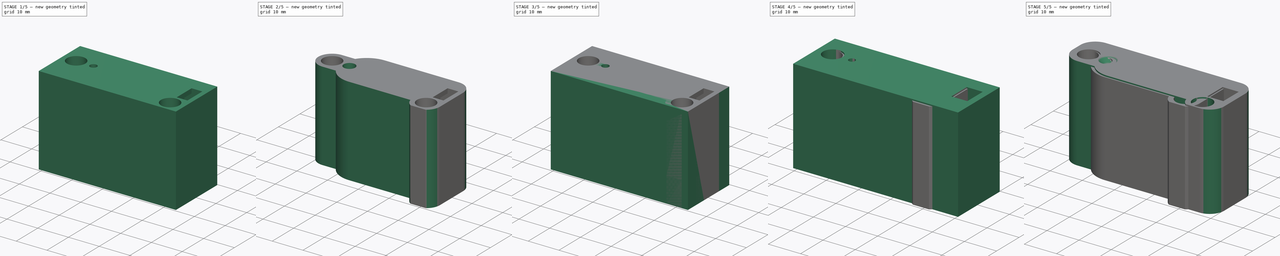
[diagram: build sequence overview — one tinted view per stage of 5, left to right]
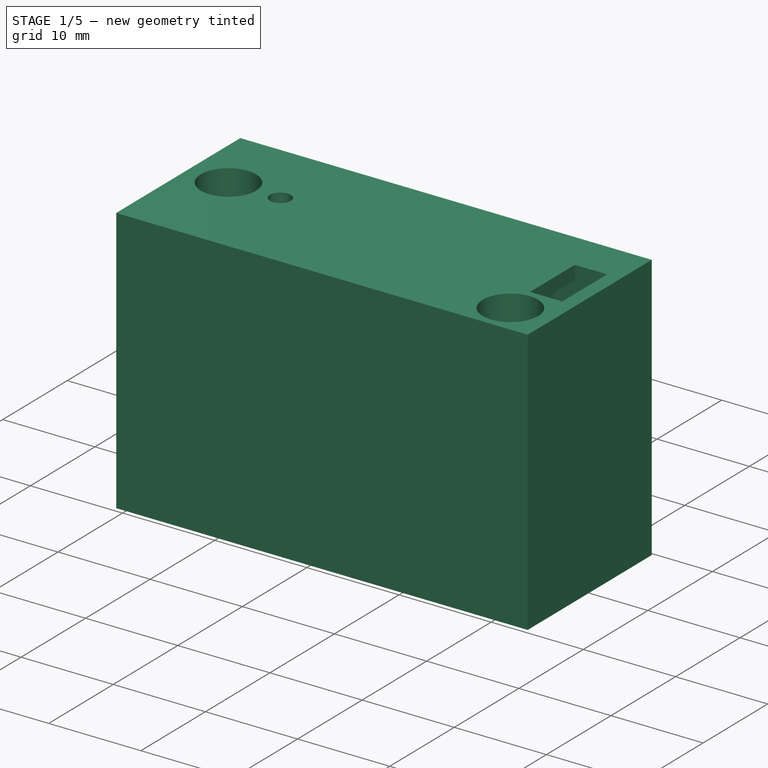
[diagram: stage 1 of 5 — iso view after this stage's code; geometry added in this stage tinted green]
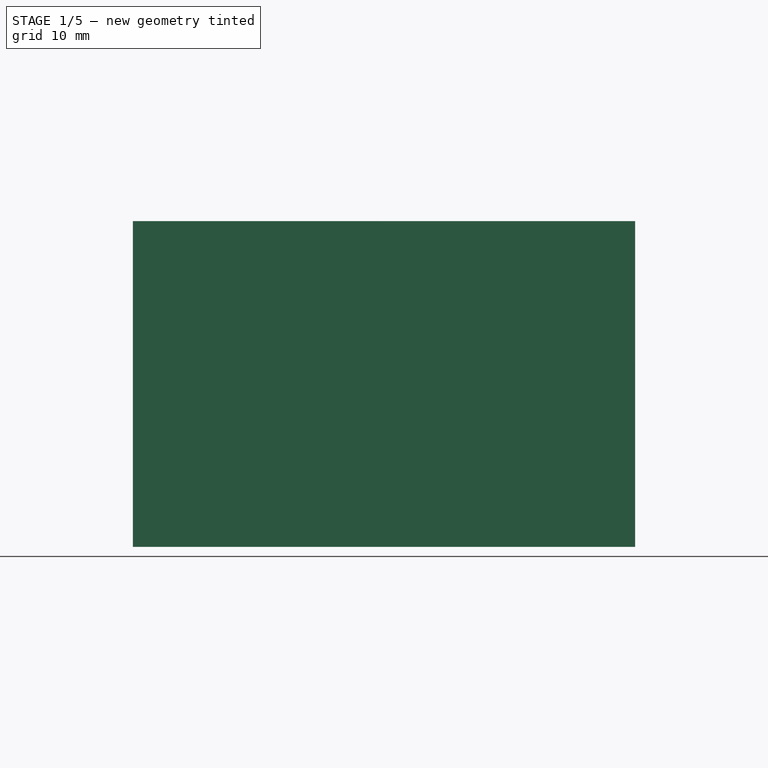
[diagram: stage 1 of 5 — front view after this stage's code; geometry added in this stage tinted green]
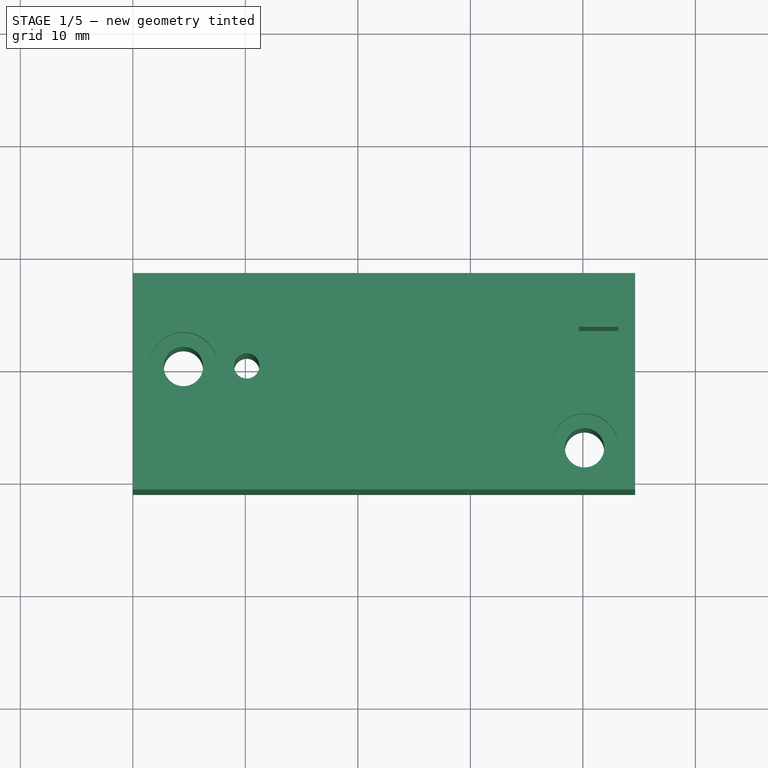
[diagram: stage 1 of 5 — top view after this stage's code; geometry added in this stage tinted green]
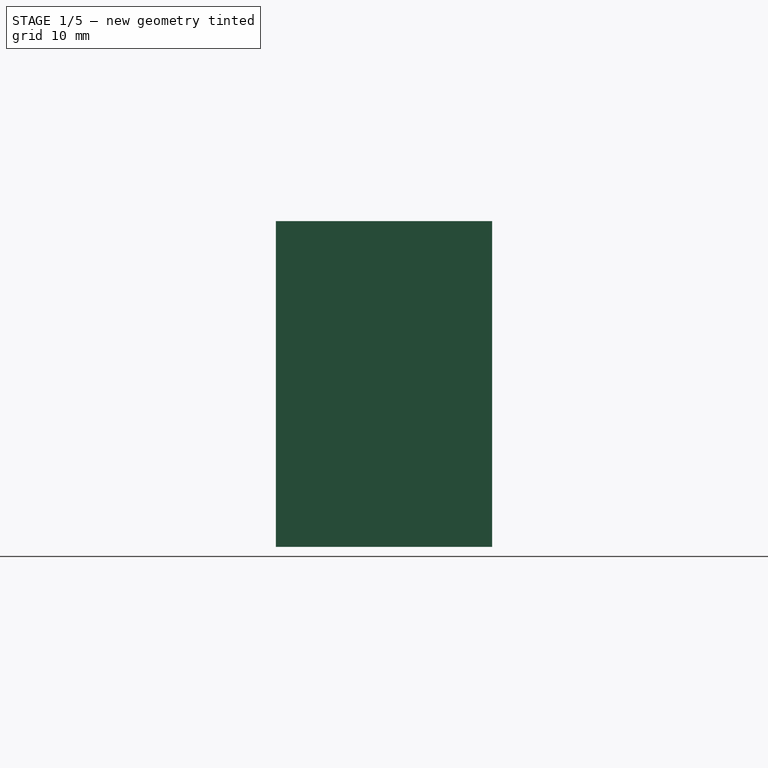
[diagram: stage 1 of 5 — right view after this stage's code; geometry added in this stage tinted green]
FCSTD DOCUMENT  (FreeCAD 0.21R33771 (Git))
Label: BidirectionalFilamentSensor
License: All rights reserved
LicenseURL: http://en.wikipedia.org/wiki/All_rights_reserved
objects: Sketcher::SketchObject×45, PartDesign::Pocket×22, PartDesign::Pad×17, Part::FeaturePython×6, PartDesign::Fillet×4, PartDesign::Body×4, PartDesign::Groove×3, PartDesign::Chamfer×3, Part::Face×2, App::DocumentObjectGroup×2, PartDesign::FeatureBase×1
note: 156 computed .brp shape members not serialized (recipe doc carries the construction recipe); baked Part::Feature solids carry a one-line shape summary decoded from their .brp

FEATURE [Sketcher::SketchObject] Sketch027  label="SplitPlaneSketch"
  AttachmentOffset = pos=(0,0,8.25) rot=(0,0,1;0rad)
  FullyConstrained = true
  MapMode = 5
  Placement = pos=(0,0,8.25) rot=(0,0,1;0rad)
  Support = -> [XY_Plane001]
  sketch-geometry (5):
    g0: LineSegment StartX=0 StartY=0 StartZ=0 EndX=0 EndY=15 EndZ=0
    g1: LineSegment StartX=0 StartY=15 StartZ=0 EndX=50 EndY=15 EndZ=0
    g2: LineSegment StartX=50 StartY=15 StartZ=0 EndX=50 EndY=-15 EndZ=0
    g3: LineSegment StartX=50 StartY=-15 StartZ=0 EndX=0 EndY=-15 EndZ=0
    g4: LineSegment StartX=0 StartY=-15 StartZ=0 EndX=0 EndY=15 EndZ=0
  constraints (14):
    c: Coincident(g0,g-1)
    c: Vertical(g0)
    c: Coincident(g1,g2)
    c: Coincident(g2,g3)
    c: Coincident(g3,g4)
    c: Coincident(g4,g1)
    c: Horizontal(g1)
    c: Horizontal(g3)
    c: Vertical(g2)
    c: Vertical(g4)
    c: Coincident(g1,g0)
    c: Distance(g0) = 15
    c: Distance(g1) = 50
    c: Distance(g2) = 30
FEATURE [PartDesign::Body] Body001  label="V2"
  Group = -> [Sketch014,Pad005,Sketch015,Pocket007,Sketch016,Pocket008,Sketch017,Pocket009,Sketch018,Sketch019,Pad006,Pad007,Sketch020,Sketch021,Pad008,Pad009,Sketch022,Sketch023,Pocket010,Pocket011,Sketch024,Pocket012,Sketch025,Groove001,Sketch026,Pocket013,Fillet002,Chamfer001,Sketch027]
  Origin = -> Origin001
  Tip = -> Chamfer001
FEATURE [Part::Face] Face001  label="SplitPlane"
  FaceMakerClass = Part::FaceMakerBullseye
  Sources = -> [Sketch027]
FEATURE [Sketcher::SketchObject] Sketch028  label="BaseGeometry001"
  FullyConstrained = true
  MapMode = 5
  Placement = pos=(0,0,0) rot=(1,0,0;1.5708rad)
  Support = -> [XZ_Plane002]
  sketch-geometry (13):
    g0: LineSegment StartX=0 StartY=0 StartZ=0 EndX=0 EndY=28.95 EndZ=0
    g1: LineSegment StartX=0 StartY=28.95 StartZ=0 EndX=39.65 EndY=28.95 EndZ=0
    g2: LineSegment StartX=39.65 StartY=28.95 StartZ=0 EndX=39.65 EndY=27.45 EndZ=0
    g3: LineSegment StartX=39.65 StartY=27.45 StartZ=0 EndX=18.75 EndY=27.45 EndZ=0
    g4: LineSegment StartX=18.75 StartY=27.45 StartZ=0 EndX=18.75 EndY=14.2 EndZ=0
    g5: LineSegment StartX=18.75 StartY=14.2 StartZ=0 EndX=23.7 EndY=14.2 EndZ=0
    g6: LineSegment StartX=23.7 StartY=14.2 StartZ=0 EndX=24.7 EndY=14.2 EndZ=0
    g7: LineSegment StartX=24.7 StartY=14.2 StartZ=0 EndX=24.7 EndY=6.7 EndZ=0
    g8: LineSegment StartX=24.7 StartY=6.7 StartZ=0 EndX=43.15 EndY=6.7 EndZ=0
    g9: LineSegment StartX=43.15 StartY=6.7 StartZ=0 EndX=43.15 EndY=28.95 EndZ=0
    g10: LineSegment StartX=43.15 StartY=28.95 StartZ=0 EndX=44.65 EndY=28.95 EndZ=0
    g11: LineSegment StartX=44.65 StartY=28.95 StartZ=0 EndX=44.65 EndY=0 EndZ=0
    g12: LineSegment StartX=44.65 StartY=0 StartZ=0 EndX=0 EndY=0 EndZ=0
  constraints (38):
    c: Coincident(g0,g-1)
    c: Vertical(g0)
    c: Coincident(g1,g0)
    c: Horizontal(g1)
    c: Coincident(g2,g1)
    c: Vertical(g2)
    c: Coincident(g3,g2)
    c: Horizontal(g3)
    c: Coincident(g4,g3)
    c: Vertical(g4)
    c: Coincident(g5,g4)
    c: Coincident(g6,g5)
    c: Horizontal(g6)
    c: Coincident(g7,g6)
    c: Vertical(g7)
    c: Coincident(g8,g7)
    c: Horizontal(g8)
    c: Coincident(g9,g8)
    c: Vertical(g9)
    c: Coincident(g10,g9)
    c: Horizontal(g10)
    c: Coincident(g11,g10)
    c: Vertical(g11)
    c: Coincident(g12,g11)
    c: Coincident(g12,g0)
    c: Horizontal(g12)
    c: Distance(g12) = 44.65
    c: Distance(g11) = 28.95
    c: Distance(g10) = 1.5
    c: Distance(g9) = 22.25
    c: Distance(g8) = 18.45
    c: Distance(g6) = 1
    c: Distance(g7) = 7.5
    c: Equal(g0,g11)
    c: Distance(g1) = 39.65
    c: Distance(g3) = 20.9
    c: Distance(g2) = 1.5
    c: Horizontal(g5)
FEATURE [PartDesign::Pad] Pad010
  Direction = (0,-1,-2e-16)
  Length = 6.95
  Length2 = 10
  Midplane = true
  Placement = pos=(0,0,0) rot=(1,0,0;1.5708rad)
  Profile = -> Sketch028
  ReferenceAxis = -> Sketch028 [N_Axis]
  Type = 0
FEATURE [Sketcher::SketchObject] Sketch029  label="ThroughHoles001"
  FullyConstrained = true
  MapMode = 5
  Placement = pos=(0,0,28.95) rot=(0,0,1;3.14159rad)
  Support = -> [Pad010]
  sketch-geometry (4):
    g0: LineSegment StartX=0 StartY=0 StartZ=0 EndX=-4.5 EndY=0 EndZ=0
    g1: LineSegment StartX=-4.5 StartY=0 StartZ=0 EndX=-10.125 EndY=0 EndZ=0
    g2: Circle CenterX=-4.5 CenterY=0 CenterZ=0 NormalX=0 NormalY=0 NormalZ=1 AngleXU=0 Radius=1.75
    g3: Circle CenterX=-10.125 CenterY=0 CenterZ=0 NormalX=0 NormalY=0 NormalZ=1 AngleXU=0 Radius=1.125
  constraints (10):
    c: Coincident(g0,g-1)
    c: Horizontal(g0)
    c: Coincident(g1,g0)
    c: Horizontal(g1)
    c: Distance(g0) = 4.5
    c: Distance(g1) = 5.625
    c: Coincident(g2,g0)
    c: Coincident(g3,g1)
    c: Diameter(g3) = 2.25
    c: Diameter(g2) = 3.5
FEATURE [PartDesign::Pocket] Pocket014
  BaseFeature = -> Pad010
  Direction = (0,2e-16,-1)
  Length = 5
  Length2 = 5
  Placement = pos=(0,0,0) rot=(1,0,0;1.5708rad)
  Profile = -> Sketch029
  ReferenceAxis = -> Sketch029 [N_Axis]
  Type = 1
FEATURE [Sketcher::SketchObject] Sketch030  label="BoltHead002"
  FullyConstrained = true
  MapMode = 5
  Placement = pos=(0,0,28.95) rot=(0,0,1;3.14159rad)
  Support = -> [Pocket014]
  expr: Constraints[2] = Sketch029.Constraints[4]
  sketch-geometry (2):
    g0: LineSegment StartX=0 StartY=0 StartZ=0 EndX=-4.5 EndY=0 EndZ=0
    g1: Circle CenterX=-4.5 CenterY=0 CenterZ=0 NormalX=0 NormalY=0 NormalZ=1 AngleXU=0 Radius=3
  constraints (5):
    c: Coincident(g0,g-1)
    c: Horizontal(g0)
    c: Distance(g0) = 4.5
    c: Coincident(g1,g0)
    c: Diameter(g1) = 6
FEATURE [PartDesign::Pocket] Pocket015
  BaseFeature = -> Pocket014
  Direction = (0,2e-16,-1)
  Length = 3
  Length2 = 5
  Placement = pos=(0,0,0) rot=(1,0,0;1.5708rad)
  Profile = -> Sketch030
  ReferenceAxis = -> Sketch030 [N_Axis]
  Type = 0
FEATURE [Sketcher::SketchObject] Sketch031  label="NutHole002"
  FullyConstrained = true
  MapMode = 5
  Placement = pos=(0,0,0) rot=(1,0,0;3.14159rad)
  Support = -> [Pocket015]
  sketch-geometry (9):
    g0: LineSegment StartX=0 StartY=0 StartZ=0 EndX=4.5 EndY=0 EndZ=0
    g1: LineSegment StartX=4.5 StartY=0 StartZ=0 EndX=7.5 EndY=0 EndZ=0
    g2: LineSegment StartX=7.5 StartY=0 StartZ=0 EndX=6 EndY=2.59808 EndZ=0
    g3: LineSegment StartX=6 StartY=2.59808 StartZ=0 EndX=3 EndY=2.59808 EndZ=0
    g4: LineSegment StartX=3 StartY=2.59808 StartZ=0 EndX=1.5 EndY=4e-16 EndZ=0
    g5: LineSegment StartX=1.5 StartY=4e-16 StartZ=0 EndX=3 EndY=-2.59808 EndZ=0
    g6: LineSegment StartX=3 StartY=-2.59808 StartZ=0 EndX=6 EndY=-2.59808 EndZ=0
    g7: LineSegment StartX=6 StartY=-2.59808 StartZ=0 EndX=7.5 EndY=0 EndZ=0
    g8: Circle CenterX=4.5 CenterY=0 CenterZ=0 NormalX=0 NormalY=0 NormalZ=1 AngleXU=0 Radius=3
  constraints (21):
    c: Coincident(g0,g-1)
    c: Horizontal(g0)
    c: Distance(g0) = 4.5
    c: Coincident(g1,g0)
    c: Horizontal(g1)
    c: Distance(g1) = 3
    c: Coincident(g2,g3)
    c: Coincident(g3,g4)
    c: Coincident(g4,g5)
    c: Coincident(g5,g6)
    c: Coincident(g6,g7)
    c: Coincident(g7,g2)
    c: Equal(g2, g3-g7) x5
    c: PointOnObject(g2,g8)
    c: PointOnObject(g3,g8)
    c: PointOnObject(g4,g8)
    c: PointOnObject(g5,g8)
    c: PointOnObject(g6,g8)
    c: PointOnObject(g7,g8)
    c: Coincident(g8,g0)
    c: Coincident(g7,g1)
FEATURE [PartDesign::Pocket] Pocket016
  BaseFeature = -> Pocket015
  Direction = (0,-2e-16,1)
  Length = 2.5
  Length2 = 5
  Placement = pos=(0,0,0) rot=(1,0,0;1.5708rad)
  Profile = -> Sketch031
  ReferenceAxis = -> Sketch031 [N_Axis]
  Type = 0
FEATURE [Sketcher::SketchObject] Sketch032  label="SwitchHolder003"
  AttachmentOffset = pos=(0,0,2) rot=(0,0,1;0rad)
  FullyConstrained = true
  MapMode = 5
  Placement = pos=(0,-2,-4e-16) rot=(1,0,0;1.5708rad)
  Support = -> [XZ_Plane002]
  sketch-geometry (6):
    g0: LineSegment StartX=0 StartY=0 StartZ=0 EndX=36.25 EndY=0 EndZ=0
    g1: LineSegment StartX=36.25 StartY=0 StartZ=0 EndX=36.25 EndY=6.7 EndZ=0
    g2: LineSegment StartX=36.25 StartY=6.7 StartZ=0 EndX=37.25 EndY=6.7 EndZ=0
    g3: LineSegment StartX=37.25 StartY=6.7 StartZ=0 EndX=37.25 EndY=27.45 EndZ=0
    g4: LineSegment StartX=37.25 StartY=27.45 StartZ=0 EndX=36.25 EndY=27.45 EndZ=0
    g5: LineSegment StartX=36.25 StartY=27.45 StartZ=0 EndX=36.25 EndY=6.7 EndZ=0
  constraints (17):
    c: Coincident(g0,g-1)
    c: Horizontal(g0)
    c: Distance(g0) = 36.25
    c: Coincident(g1,g0)
    c: Vertical(g1)
    c: Distance(g1) = 6.7
    c: Coincident(g2,g3)
    c: Coincident(g3,g4)
    c: Coincident(g4,g5)
    c: Coincident(g5,g2)
    c: Horizontal(g2)
    c: Horizontal(g4)
    c: Vertical(g3)
    c: Vertical(g5)
    c: Coincident(g2,g1)
    c: Distance(g5) = 20.75
    c: Distance(g2) = 1
FEATURE [PartDesign::Pad] Pad011
  BaseFeature = -> Pocket016
  Direction = (0,-1,-2e-16)
  Length = 10
  Length2 = 10
  Placement = pos=(0,0,0) rot=(1,0,0;1.5708rad)
  Profile = -> Sketch032
  ReferenceAxis = -> Sketch032 [N_Axis]
  Type = 3
  UpToFace = -> Pocket016 [Face5]
FEATURE [Sketcher::SketchObject] Sketch033  label="SwitchHolder004"
  AttachmentOffset = pos=(0,0,-2) rot=(0,0,1;0rad)
  FullyConstrained = true
  MapMode = 5
  Placement = pos=(0,2,4e-16) rot=(1,0,0;1.5708rad)
  Support = -> [XZ_Plane002]
  expr: Constraints[15] = Sketch032.Constraints[15]
  expr: Constraints[16] = Sketch032.Constraints[16]
  expr: Constraints[2] = Sketch032.Constraints[2]
  expr: Constraints[5] = Sketch032.Constraints[5]
  sketch-geometry (6):
    g0: LineSegment StartX=0 StartY=0 StartZ=0 EndX=36.25 EndY=0 EndZ=0
    g1: LineSegment StartX=36.25 StartY=0 StartZ=0 EndX=36.25 EndY=6.7 EndZ=0
    g2: LineSegment StartX=36.25 StartY=6.7 StartZ=0 EndX=37.25 EndY=6.7 EndZ=0
    g3: LineSegment StartX=37.25 StartY=6.7 StartZ=0 EndX=37.25 EndY=27.45 EndZ=0
    g4: LineSegment StartX=37.25 StartY=27.45 StartZ=0 EndX=36.25 EndY=27.45 EndZ=0
    g5: LineSegment StartX=36.25 StartY=27.45 StartZ=0 EndX=36.25 EndY=6.7 EndZ=0
  constraints (17):
    c: Coincident(g0,g-1)
    c: Horizontal(g0)
    c: Distance(g0) = 36.25
    c: Coincident(g1,g0)
    c: Vertical(g1)
    c: Distance(g1) = 6.7
    c: Coincident(g2,g3)
    c: Coincident(g3,g4)
    c: Coincident(g4,g5)
    c: Coincident(g5,g2)
    c: Horizontal(g2)
    c: Horizontal(g4)
    c: Vertical(g3)
    c: Vertical(g5)
    c: Coincident(g2,g1)
    c: Distance(g5) = 20.75
    c: Distance(g2) = 1
FEATURE [PartDesign::Pad] Pad012
  BaseFeature = -> Pad011
  Direction = (0,-1,-2e-16)
  Length = 10
  Length2 = 10
  Placement = pos=(0,0,0) rot=(1,0,0;1.5708rad)
  Profile = -> Sketch033
  ReferenceAxis = -> Sketch033 [N_Axis]
  Type = 3
  UpToFace = -> Pad011 [Face4]
FEATURE [Sketcher::SketchObject] Sketch034  label="FrontWall001"
  AttachmentOffset = pos=(0,0,3.475) rot=(0,0,1;0rad)
  ExternalGeometry = -> [Pad012]
  FullyConstrained = true
  MapMode = 5
  Placement = pos=(0,-3.475,-8e-16) rot=(1,0,0;1.5708rad)
  Support = -> [XZ_Plane002]
  sketch-geometry (4):
    g0: LineSegment StartX=0 StartY=0 StartZ=0 EndX=44.65 EndY=0 EndZ=0
    g1: LineSegment StartX=44.65 StartY=0 StartZ=0 EndX=44.65 EndY=28.95 EndZ=0
    g2: LineSegment StartX=44.65 StartY=28.95 StartZ=0 EndX=0 EndY=28.95 EndZ=0
    g3: LineSegment StartX=0 StartY=28.95 StartZ=0 EndX=0 EndY=0 EndZ=0
  constraints (10):
    c: Coincident(g0,g1)
    c: Coincident(g1,g2)
    c: Coincident(g2,g3)
    c: Coincident(g3,g0)
    c: Horizontal(g0)
    c: Horizontal(g2)
    c: Vertical(g1)
    c: Vertical(g3)
    c: Coincident(g0,g-1)
    c: Coincident(g1,g-3)
FEATURE [Sketcher::SketchObject] Sketch035  label="BackWall001"
  AttachmentOffset = pos=(0,0,-3.475) rot=(0,0,1;0rad)
  ExternalGeometry = -> [Pad012]
  FullyConstrained = true
  MapMode = 5
  Placement = pos=(0,3.475,8e-16) rot=(1,0,0;1.5708rad)
  Support = -> [XZ_Plane002]
  sketch-geometry (4):
    g0: LineSegment StartX=0 StartY=0 StartZ=0 EndX=44.65 EndY=0 EndZ=0
    g1: LineSegment StartX=44.65 StartY=0 StartZ=0 EndX=44.65 EndY=28.95 EndZ=0
    g2: LineSegment StartX=44.65 StartY=28.95 StartZ=0 EndX=0 EndY=28.95 EndZ=0
    g3: LineSegment StartX=0 StartY=28.95 StartZ=0 EndX=0 EndY=0 EndZ=0
  constraints (10):
    c: Coincident(g0,g1)
    c: Coincident(g1,g2)
    c: Coincident(g2,g3)
    c: Coincident(g3,g0)
    c: Horizontal(g0)
    c: Horizontal(g2)
    c: Vertical(g1)
    c: Vertical(g3)
    c: Coincident(g0,g-1)
    c: Coincident(g1,g-3)
FEATURE [PartDesign::Pad] Pad013
  BaseFeature = -> Pad012
  Direction = (0,1,0)
  Length = 4.78
  Length2 = 10
  Placement = pos=(0,0,0) rot=(1,0,0;1.5708rad)
  Profile = -> Sketch035
  ReferenceAxis = -> Sketch035 [N_Axis]
  Type = 0
  UseCustomVector = true
FEATURE [PartDesign::Pad] Pad014
  BaseFeature = -> Pad013
  Direction = (0,-1,-2e-16)
  Length = 7.5
  Length2 = 10
  Placement = pos=(0,0,0) rot=(1,0,0;1.5708rad)
  Profile = -> Sketch034
  ReferenceAxis = -> Sketch034 [N_Axis]
  Type = 0
FEATURE [Sketcher::SketchObject] Sketch036  label="Bolt2Throughhole001"
  ExternalGeometry = -> [Pad014]
  FullyConstrained = true
  MapMode = 5
  Placement = pos=(0,0,28.95) rot=(0,0,1;3.14159rad)
  Support = -> [Pad014]
  sketch-geometry (3):
    g0: LineSegment StartX=-44.65 StartY=10.975 StartZ=0 EndX=-40.15 EndY=10.975 EndZ=0
    g1: LineSegment StartX=-40.15 StartY=10.975 StartZ=0 EndX=-40.15 EndY=7.225 EndZ=0
    g2: Circle CenterX=-40.15 CenterY=7.225 CenterZ=0 NormalX=0 NormalY=0 NormalZ=1 AngleXU=0 Radius=1.75
  constraints (8):
    c: Coincident(g0,g-3)
    c: Horizontal(g0)
    c: Coincident(g1,g0)
    c: Vertical(g1)
    c: Distance(g0) = 4.5
    c: Distance(g1) = 3.75
    c: Coincident(g2,g1)
    c: Diameter(g2) = 3.5
FEATURE [PartDesign::Pocket] Pocket017
  BaseFeature = -> Pad014
  Direction = (0,2e-16,-1)
  Length = 5
  Length2 = 5
  Placement = pos=(0,0,0) rot=(1,0,0;1.5708rad)
  Profile = -> Sketch036
  ReferenceAxis = -> Sketch036 [N_Axis]
  Type = 1
FEATURE [Sketcher::SketchObject] Sketch037  label="Bolthead003"
  ExternalGeometry = -> [Pad014]
  FullyConstrained = true
  MapMode = 5
  Placement = pos=(0,0,28.95) rot=(0,0,1;3.14159rad)
  Support = -> [Pad014]
  expr: Constraints[4] = Sketch036.Constraints[4]
  expr: Constraints[5] = Sketch036.Constraints[5]
  sketch-geometry (3):
    g0: LineSegment StartX=-44.65 StartY=10.975 StartZ=0 EndX=-40.15 EndY=10.975 EndZ=0
    g1: LineSegment StartX=-40.15 StartY=10.975 StartZ=0 EndX=-40.15 EndY=7.225 EndZ=0
    g2: Circle CenterX=-40.15 CenterY=7.225 CenterZ=0 NormalX=0 NormalY=0 NormalZ=1 AngleXU=0 Radius=3
  constraints (8):
    c: Coincident(g0,g-3)
    c: Horizontal(g0)
    c: Coincident(g1,g0)
    c: Vertical(g1)
    c: Distance(g0) = 4.5
    c: Distance(g1) = 3.75
    c: Coincident(g2,g1)
    c: Diameter(g2) = 6
FEATURE [PartDesign::Pocket] Pocket018
  BaseFeature = -> Pocket017
  Direction = (0,2e-16,-1)
  Length = 3
  Length2 = 5
  Placement = pos=(0,0,0) rot=(1,0,0;1.5708rad)
  Profile = -> Sketch037
  ReferenceAxis = -> Sketch037 [N_Axis]
  Type = 0
FEATURE [Sketcher::SketchObject] Sketch038  label="Nut2Cutout001"
  ExternalGeometry = -> [Pocket018]
  FullyConstrained = true
  MapMode = 5
  Placement = pos=(0,0,0) rot=(1,0,0;3.14159rad)
  Support = -> [Pocket018]
  sketch-geometry (10):
    g0: LineSegment StartX=44.65 StartY=10.975 StartZ=0 EndX=40.15 EndY=10.975 EndZ=0
    g1: LineSegment StartX=40.15 StartY=10.975 StartZ=0 EndX=40.15 EndY=7.225 EndZ=0
    g2: LineSegment StartX=40.15 StartY=7.225 StartZ=0 EndX=43.15 EndY=7.225 EndZ=0
    g3: LineSegment StartX=43.15 StartY=7.225 StartZ=0 EndX=41.65 EndY=9.82308 EndZ=0
    g4: LineSegment StartX=41.65 StartY=9.82308 StartZ=0 EndX=38.65 EndY=9.82308 EndZ=0
    g5: LineSegment StartX=38.65 StartY=9.82308 StartZ=0 EndX=37.15 EndY=7.225 EndZ=0
    g6: LineSegment StartX=37.15 StartY=7.225 StartZ=0 EndX=38.65 EndY=4.62692 EndZ=0
    g7: LineSegment StartX=38.65 StartY=4.62692 StartZ=0 EndX=41.65 EndY=4.62692 EndZ=0
    g8: LineSegment StartX=41.65 StartY=4.62692 StartZ=0 EndX=43.15 EndY=7.225 EndZ=0
    g9: Circle CenterX=40.15 CenterY=7.225 CenterZ=0 NormalX=0 NormalY=0 NormalZ=1 AngleXU=0 Radius=3
  constraints (24):
    c: Coincident(g0,g-3)
    c: Horizontal(g0)
    c: Coincident(g1,g0)
    c: Vertical(g1)
    c: Distance(g0) = 4.5
    c: Distance(g1) = 3.75
    c: Coincident(g2,g1)
    c: Horizontal(g2)
    c: Distance(g2) = 3
    c: Coincident(g3,g4)
    c: Coincident(g4,g5)
    c: Coincident(g5,g6)
    c: Coincident(g6,g7)
    c: Coincident(g7,g8)
    c: Coincident(g8,g3)
    c: Equal(g3, g4-g8) x5
    c: PointOnObject(g3,g9)
    c: PointOnObject(g4,g9)
    c: PointOnObject(g5,g9)
    c: PointOnObject(g6,g9)
    c: PointOnObject(g7,g9)
    c: PointOnObject(g8,g9)
    c: Coincident(g9,g1)
    c: Coincident(g8,g2)
FEATURE [PartDesign::Pocket] Pocket019
  BaseFeature = -> Pocket018
  Direction = (0,-2e-16,1)
  Length = 2.5
  Length2 = 5
  Placement = pos=(0,0,0) rot=(1,0,0;1.5708rad)
  Profile = -> Sketch038
  ReferenceAxis = -> Sketch038 [N_Axis]
  Type = 0
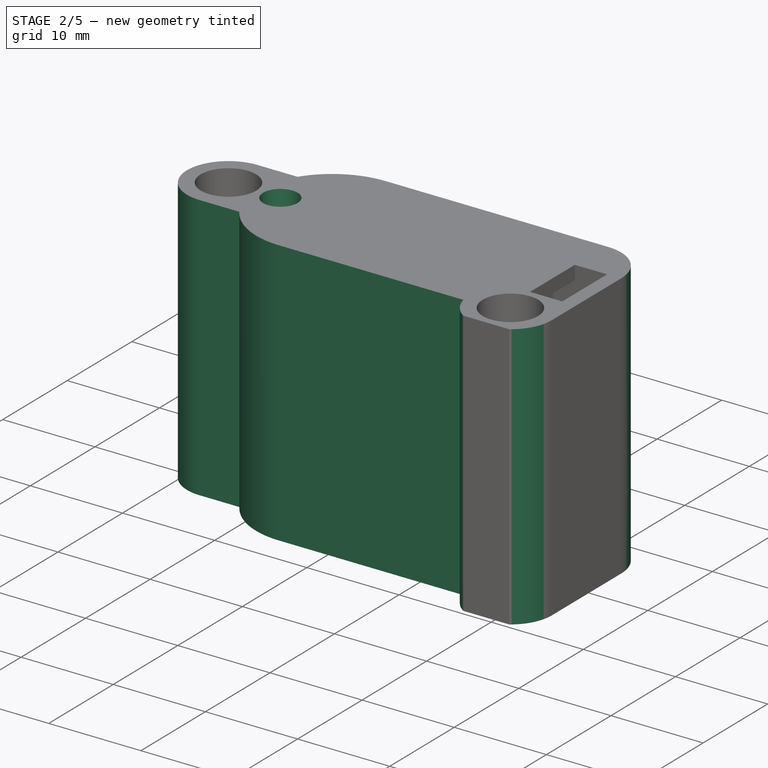
[diagram: stage 2 of 5 — iso view after this stage's code; geometry added in this stage tinted green]
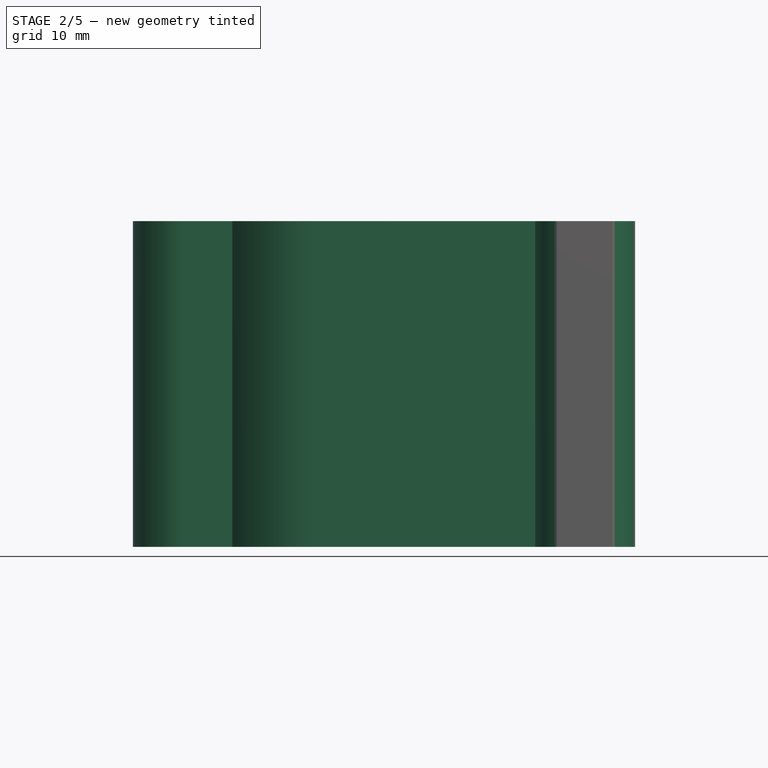
[diagram: stage 2 of 5 — front view after this stage's code; geometry added in this stage tinted green]
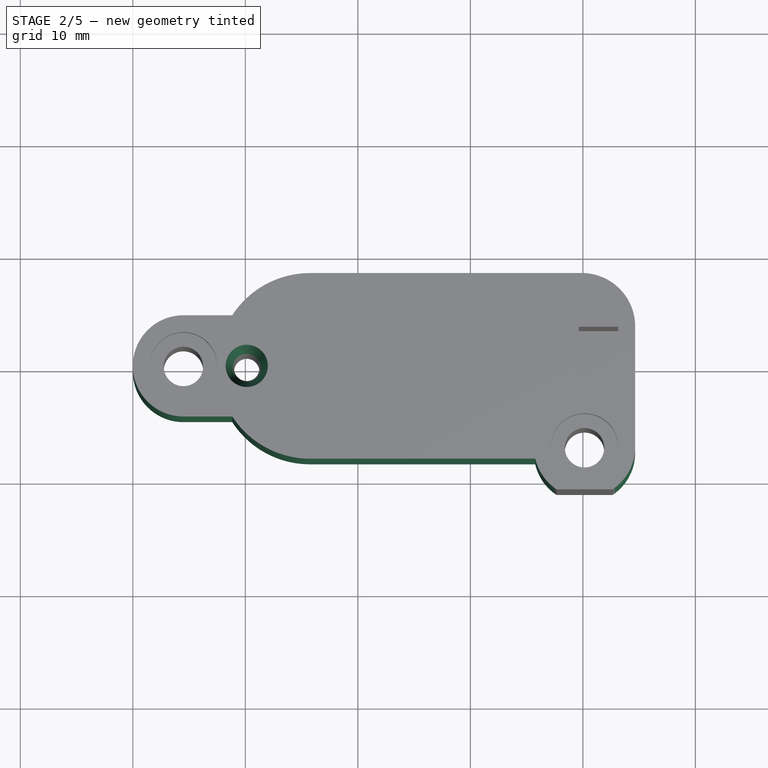
[diagram: stage 2 of 5 — top view after this stage's code; geometry added in this stage tinted green]
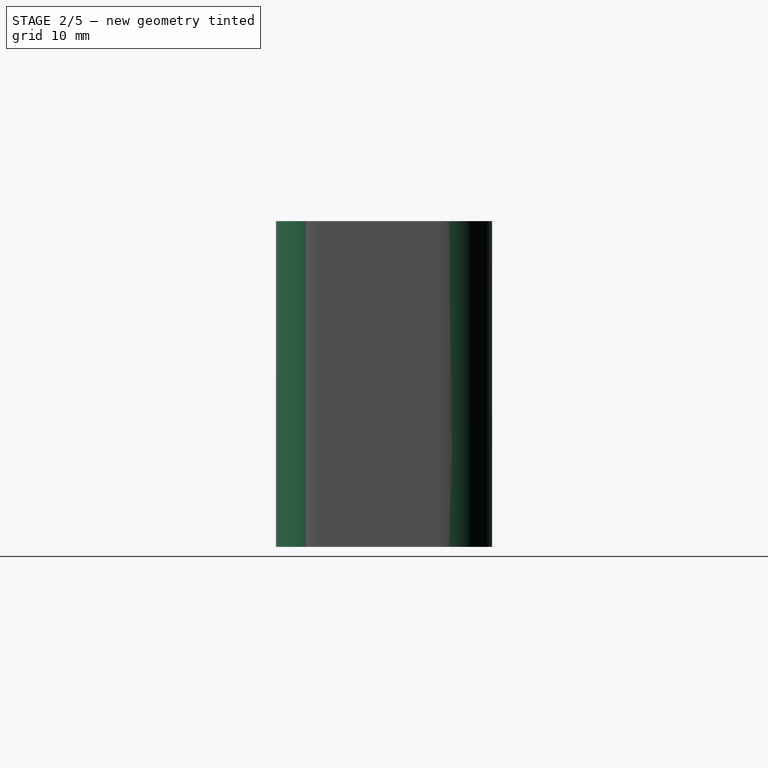
[diagram: stage 2 of 5 — right view after this stage's code; geometry added in this stage tinted green]
FEATURE [Sketcher::SketchObject] Sketch039  label="BallCavity001"
  FullyConstrained = true
  MapMode = 5
  Placement = pos=(0,0,0) rot=(1,0,0;1.5708rad)
  Support = -> [XZ_Plane002]
  sketch-geometry (7):
    g0: LineSegment StartX=0 StartY=0 StartZ=0 EndX=0 EndY=8.25 EndZ=0
    g1: LineSegment StartX=0 StartY=8.25 StartZ=0 EndX=15.75 EndY=8.25 EndZ=0
    g2: LineSegment StartX=15.75 StartY=8.25 StartZ=0 EndX=15.75 EndY=15 EndZ=0
    g3: ArcOfCircle CenterX=15.75 CenterY=8.25 CenterZ=0 NormalX=0 NormalY=0 NormalZ=1 AngleXU=0 Radius=6.75 StartAngle=1.5708 EndAngle=3.14159
    g4: LineSegment StartX=15.75 StartY=15 StartZ=0 EndX=24.7 EndY=15 EndZ=0
    g5: LineSegment StartX=24.7 StartY=15 StartZ=0 EndX=24.7 EndY=8.25 EndZ=0
    g6: LineSegment StartX=24.7 StartY=8.25 StartZ=0 EndX=9 EndY=8.25 EndZ=0
  constraints (20):
    c: Coincident(g0,g-1)
    c: Vertical(g0)
    c: Coincident(g1,g0)
    c: Horizontal(g1)
    c: Distance(g0) = 8.25
    c: Distance(g1) = 15.75
    c: Coincident(g2,g1)
    c: Vertical(g2)
    c: Distance(g2) = 6.75
    c: Coincident(g3,g1)
    c: Coincident(g3,g2)
    c: PointOnObject(g3,g1)
    c: Coincident(g4,g3)
    c: Horizontal(g4)
    c: Coincident(g5,g4)
    c: Vertical(g5)
    c: Coincident(g6,g5)
    c: Coincident(g6,g3)
    c: Horizontal(g6)
    c: Distance(g6) = 15.7
FEATURE [PartDesign::Groove] Groove002
  Angle = 360
  Axis = (15.75,0,0)
  Base = (0,-1.8e-15,8.25)
  BaseFeature = -> Pocket019
  Placement = pos=(0,0,0) rot=(1,0,0;1.5708rad)
  Profile = -> Sketch039
  ReferenceAxis = -> Sketch039 [Axis1]
  Reversed = true
FEATURE [Sketcher::SketchObject] Sketch040  label="MaterialReduction001"
  ExternalGeometry = -> [Pad014]
  FullyConstrained = true
  MapMode = 5
  Placement = pos=(0,0,28.95) rot=(0,0,1;3.14159rad)
  Support = -> [Groove002]
  expr: Constraints[14] = Sketch037.Constraints[4]
  expr: Constraints[15] = Sketch037.Constraints[5]
  sketch-geometry (22):
    g0: LineSegment StartX=0 StartY=0 StartZ=0 EndX=-4.5 EndY=0 EndZ=0
    g1: LineSegment StartX=-4.5 StartY=0 StartZ=0 EndX=-15.75 EndY=0 EndZ=0
    g2: LineSegment StartX=-15.75 StartY=0 StartZ=0 EndX=-15.75 EndY=8.25 EndZ=0
    g3: LineSegment StartX=-4.5 StartY=0 StartZ=0 EndX=-4.5 EndY=4.5 EndZ=0
    g4: LineSegment StartX=-4.5 StartY=0 StartZ=0 EndX=-4.5 EndY=-4.5 EndZ=0
    g5: LineSegment StartX=-44.65 StartY=10.975 StartZ=0 EndX=-40.15 EndY=10.975 EndZ=0
    g6: LineSegment StartX=-40.15 StartY=10.975 StartZ=0 EndX=-40.15 EndY=7.225 EndZ=0
    g7: ArcOfCircle CenterX=-4.5 CenterY=0 CenterZ=0 NormalX=0 NormalY=0 NormalZ=1 AngleXU=0 Radius=4.5 StartAngle=4.71239 EndAngle=7.85398
    g8: LineSegment StartX=-40.15 StartY=7.225 StartZ=0 EndX=-44.65 EndY=7.225 EndZ=0
    g9: ArcOfCircle CenterX=-15.75 CenterY=0 CenterZ=0 NormalX=0 NormalY=0 NormalZ=1 AngleXU=0 Radius=8.25 StartAngle=0.576931 EndAngle=1.5708
    g10: ArcOfCircle CenterX=-40.15 CenterY=7.225 CenterZ=0 NormalX=0 NormalY=0 NormalZ=1 AngleXU=0 Radius=4.5 StartAngle=0.229795 EndAngle=3.14159
    g11: LineSegment StartX=-4.5 StartY=4.5 StartZ=0 EndX=-8.83534 EndY=4.5 EndZ=0
    g12: LineSegment StartX=-15.75 StartY=8.25 StartZ=0 EndX=-35.7683 EndY=8.25 EndZ=0
    g13: LineSegment StartX=-15.75 StartY=0 StartZ=0 EndX=-15.75 EndY=-8.25 EndZ=0
    g14: ArcOfCircle CenterX=-15.75 CenterY=0 CenterZ=0 NormalX=0 NormalY=0 NormalZ=1 AngleXU=0 Radius=8.25 StartAngle=4.71239 EndAngle=5.70625
    g15: LineSegment StartX=-4.5 StartY=-4.5 StartZ=0 EndX=-8.83534 EndY=-4.5 EndZ=0
    g16: LineSegment StartX=-15.75 StartY=-8.25 StartZ=0 EndX=-15.75 EndY=-9.25 EndZ=0
    g17: LineSegment StartX=-15.75 StartY=-9.25 StartZ=0 EndX=1.25 EndY=-9.25 EndZ=0
    g18: LineSegment StartX=1.25 StartY=-9.25 StartZ=0 EndX=1.25 EndY=12.75 EndZ=0
    g19: LineSegment StartX=1.25 StartY=12.75 StartZ=0 EndX=-48.75 EndY=12.75 EndZ=0
    g20: LineSegment StartX=-48.75 StartY=12.75 StartZ=0 EndX=-48.75 EndY=7.225 EndZ=0
    g21: LineSegment StartX=-48.75 StartY=7.225 StartZ=0 EndX=-44.65 EndY=7.225 EndZ=0
  constraints (61):
    c: Coincident(g0,g-1)
    c: Horizontal(g0)
    c: Coincident(g1,g0)
    c: Horizontal(g1)
    c: Coincident(g2,g1)
    c: Vertical(g2)
    c: Coincident(g3,g0)
    c: Vertical(g3)
    c: Coincident(g4,g0)
    c: Vertical(g4)
    c: Coincident(g5,g-3)
    c: Horizontal(g5)
    c: Coincident(g6,g5)
    c: Vertical(g6)
    c: Distance(g5) = 4.5
    c: Distance(g6) = 3.75
    c: Distance(g0) = 4.5
    c: Distance(g3) = 4.5
    c: Distance(g2) = 8.25
    c: Distance(g1) = 11.25
    c: Coincident(g7,g0)
    c: Coincident(g7,g3)
    c: Coincident(g7,g4)
    c: Coincident(g8,g6)
    c: Horizontal(g8)
    c: Distance(g8) = 4.5
    c: Coincident(g9,g1)
    c: Coincident(g9,g2)
    c: Coincident(g10,g6)
    c: Coincident(g10,g8)
    c: Coincident(g11,g7)
    c: Coincident(g11,g9)
    c: Coincident(g12,g2)
    c: Coincident(g12,g10)
    c: Horizontal(g11)
    c: Horizontal(g12)
    c: Coincident(g13,g9)
    c: Vertical(g13)
    c: Distance(g13) = 8.25
    c: Coincident(g14,g9)
    c: Coincident(g14,g13)
    c: Coincident(g15,g7)
    c: Coincident(g15,g14)
    c: Horizontal(g15)
    c: Coincident(g16,g14)
    c: Vertical(g16)
    c: Coincident(g17,g16)
    c: Horizontal(g17)
    c: Coincident(g18,g17)
    c: Vertical(g18)
    c: Coincident(g19,g18)
    c: Horizontal(g19)
    c: Coincident(g20,g19)
    c: Vertical(g20)
    c: Coincident(g21,g20)
    c: Horizontal(g21)
    c: Coincident(g21,g10)
    c: Distance(g16) = 1
    c: Distance(g17) = 17
    c: Distance(g18) = 22
    c: Distance(g19) = 50
FEATURE [PartDesign::Pocket] Pocket020
  BaseFeature = -> Groove002
  Direction = (0,2e-16,-1)
  Length = 5
  Length2 = 5
  Placement = pos=(0,0,0) rot=(1,0,0;1.5708rad)
  Profile = -> Sketch040
  ReferenceAxis = -> Sketch040 [N_Axis]
  Type = 1
FEATURE [PartDesign::Fillet] Fillet003
  Base = -> Pocket020 [Edge50]
  BaseFeature = -> Pocket020
  Placement = pos=(0,0,0) rot=(1,0,0;1.5708rad)
  Radius = 4.75
  SupportTransform = false
  UseAllEdges = false
FEATURE [PartDesign::Chamfer] Chamfer002
  Angle = 45
  Base = -> Fillet003 [Edge40]
  BaseFeature = -> Fillet003
  ChamferType = 1
  FlipDirection = false
  Placement = pos=(0,0,0) rot=(1,0,0;1.5708rad)
  Size = 0.75
  Size2 = 13
  SupportTransform = false
  UseAllEdges = false
FEATURE [Sketcher::SketchObject] Sketch041  label="SplitPlaneSketch001"
  AttachmentOffset = pos=(0,0,8.25) rot=(0,0,1;0rad)
  FullyConstrained = true
  MapMode = 5
  Placement = pos=(0,0,8.25) rot=(0,0,1;0rad)
  Support = -> [XY_Plane002]
  sketch-geometry (5):
    g0: LineSegment StartX=0 StartY=0 StartZ=0 EndX=0 EndY=15 EndZ=0
    g1: LineSegment StartX=0 StartY=15 StartZ=0 EndX=50 EndY=15 EndZ=0
    g2: LineSegment StartX=50 StartY=15 StartZ=0 EndX=50 EndY=-15 EndZ=0
    g3: LineSegment StartX=50 StartY=-15 StartZ=0 EndX=0 EndY=-15 EndZ=0
    g4: LineSegment StartX=0 StartY=-15 StartZ=0 EndX=0 EndY=15 EndZ=0
  constraints (14):
    c: Coincident(g0,g-1)
    c: Vertical(g0)
    c: Coincident(g1,g2)
    c: Coincident(g2,g3)
    c: Coincident(g3,g4)
    c: Coincident(g4,g1)
    c: Horizontal(g1)
    c: Horizontal(g3)
    c: Vertical(g2)
    c: Vertical(g4)
    c: Coincident(g1,g0)
    c: Distance(g0) = 15
    c: Distance(g1) = 50
    c: Distance(g2) = 30
FEATURE [PartDesign::Body] Body002  label="V2 split"
  Group = -> [Sketch028,Pad010,Sketch029,Pocket014,Sketch030,Pocket015,Sketch031,Pocket016,Sketch032,Sketch033,Pad011,Pad012,Sketch034,Sketch035,Pad013,Pad014,Sketch036,Sketch037,Pocket017,Pocket018,Sketch038,Pocket019,Sketch039,Groove002,Sketch040,Pocket020,Fillet003,Chamfer002,Sketch041]
  Origin = -> Origin002
  Tip = -> Chamfer002
FEATURE [Part::FeaturePython] Slice001  # WARN: FeaturePython — macro-defined, semantics opaque (R4)
  Base = -> Body002
  Mode = 1
  Tolerance = 0
  Tools = -> [Face001]
FEATURE [Part::FeaturePython] Slice001_child0  label="V2 top"  # WARN: FeaturePython — macro-defined, semantics opaque (R4)
  Base = -> Slice001
  FilterType = 1
  Invert = false
  OverrideMaxVal = 0
  WindowFrom = 80
  WindowTo = 100
  items = 0
FEATURE [Part::FeaturePython] Slice001_child1  label="V2 bottom incomplete"  # WARN: FeaturePython — macro-defined, semantics opaque (R4)
  Base = -> Slice001
  FilterType = 1
  Invert = false
  OverrideMaxVal = 0
  WindowFrom = 80
  WindowTo = 100
  items = 1
FEATURE [App::DocumentObjectGroup] GrExplode_Slice001  label="V2 split001"
  Group = -> [Slice001_child0,Slice001_child1]
FEATURE [PartDesign::FeatureBase] Clone
  BaseFeature = -> Slice001_child1
FEATURE [Sketcher::SketchObject] Sketch042  label="Switch retainer"
  ExternalGeometry = -> [Clone]
  FullyConstrained = true
  MapMode = 5
  Placement = pos=(0,1.5e-15,6.7) rot=(0,0,1;0rad)
  Support = -> [Clone]
  sketch-geometry (6):
    g0: LineSegment StartX=24.7 StartY=3.475 StartZ=0 EndX=24.7 EndY=3.175 EndZ=0
    g1: LineSegment StartX=24.7 StartY=3.175 StartZ=0 EndX=25.7 EndY=3.175 EndZ=0
    g2: LineSegment StartX=25.7 StartY=3.175 StartZ=0 EndX=25.7 EndY=-3.175 EndZ=0
    g3: LineSegment StartX=25.7 StartY=-3.175 StartZ=0 EndX=24.7 EndY=-3.175 EndZ=0
    g4: LineSegment StartX=24.7 StartY=-3.175 StartZ=0 EndX=24.7 EndY=3.175 EndZ=0
    g5: LineSegment StartX=24.7 StartY=-3.475 StartZ=0 EndX=24.7 EndY=-3.175 EndZ=0
  constraints (16):
    c: Coincident(g0,g-3)
    c: Vertical(g0)
    c: Distance(g0) = 0.3
    c: Coincident(g1,g2)
    c: Coincident(g2,g3)
    c: Coincident(g3,g4)
    c: Coincident(g4,g1)
    c: Horizontal(g1)
    c: Horizontal(g3)
    c: Vertical(g2)
    c: Vertical(g4)
    c: Coincident(g1,g0)
    c: Distance(g3) = 1
    c: Coincident(g5,g-4)
    c: Coincident(g5,g3)
    c: Distance(g5) = 0.3
FEATURE [PartDesign::Pad] Pad015
  BaseFeature = -> Clone
  Direction = (0,2e-16,1)
  Length = 7.5
  Length2 = 10
  Profile = -> Sketch042
  ReferenceAxis = -> Sketch042 [N_Axis]
  Type = 0
FEATURE [Sketcher::SketchObject] Sketch043  label="Switch retainer reinforcement"
  ExternalGeometry = -> [Clone]
  FullyConstrained = true
  MapMode = 5
  Placement = pos=(0,1.5e-15,6.7) rot=(0,0,1;0rad)
  Support = -> [Pad015]
  expr: Constraints[2] = Sketch042.Constraints[2]
  expr: Constraints[4] = Sketch042.Constraints[15]
  sketch-geometry (6):
    g0: LineSegment StartX=24.7 StartY=3.475 StartZ=0 EndX=24.7 EndY=3.175 EndZ=0
    g1: LineSegment StartX=24.7 StartY=-3.475 StartZ=0 EndX=24.7 EndY=-3.175 EndZ=0
    g2: LineSegment StartX=24.7 StartY=3.175 StartZ=0 EndX=24.2 EndY=3.175 EndZ=0
    g3: LineSegment StartX=24.2 StartY=3.175 StartZ=0 EndX=24.2 EndY=-3.175 EndZ=0
    g4: LineSegment StartX=24.2 StartY=-3.175 StartZ=0 EndX=24.7 EndY=-3.175 EndZ=0
    g5: LineSegment StartX=24.7 StartY=-3.175 StartZ=0 EndX=24.7 EndY=3.175 EndZ=0
  constraints (16):
    c: Coincident(g0,g-3)
    c: Vertical(g0)
    c: Distance(g0) = 0.3
    c: Coincident(g1,g-4)
    c: Distance(g1) = 0.3
    c: Coincident(g2,g3)
    c: Coincident(g3,g4)
    c: Coincident(g4,g5)
    c: Coincident(g5,g2)
    c: Horizontal(g2)
    c: Horizontal(g4)
    c: Vertical(g3)
    c: Vertical(g5)
    c: Coincident(g2,g0)
    c: Coincident(g4,g1)
    c: Distance(g2) = 0.5
FEATURE [PartDesign::Pad] Pad016
  BaseFeature = -> Pad015
  Direction = (0,2e-16,1)
  Length = 7.5
  Length2 = 6.7
  Midplane = true
  Profile = -> Sketch043
  ReferenceAxis = -> Sketch043 [N_Axis]
  Type = 4
FEATURE [Sketcher::SketchObject] Sketch044  label="Filament taper out"
  ExternalGeometry = -> [Pad016]
  FullyConstrained = true
  MapMode = 5
  Placement = pos=(0,0,8.25) rot=(0,0,1;0rad)
  Support = -> [Pad016]
  sketch-geometry (3):
    g0: LineSegment StartX=9 StartY=1.8e-15 StartZ=0 EndX=10.125 EndY=1.8e-15 EndZ=0
    g1: LineSegment StartX=10.125 StartY=1.8e-15 StartZ=0 EndX=11.5 EndY=1.8e-15 EndZ=0
    g2: Circle CenterX=10.125 CenterY=1.8e-15 CenterZ=0 NormalX=0 NormalY=0 NormalZ=1 AngleXU=0 Radius=1.375
  constraints (8):
    c: Coincident(g0,g-3)
    c: Horizontal(g0)
    c: Distance(g0) = 1.125
    c: Coincident(g1,g0)
    c: Horizontal(g1)
    c: Distance(g1) = 1.375
    c: Coincident(g2,g0)
    c: PointOnObject(g1,g2)
FEATURE [PartDesign::Pocket] Pocket021
  BaseFeature = -> Pad016
  Direction = (0,0,-1)
  Length = 8.25
  Length2 = 5
  Profile = -> Sketch044
  ReferenceAxis = -> Sketch044 [N_Axis]
  TaperAngle = -1.73571
  Type = 0
FEATURE [PartDesign::Body] Body003  label="V2 bottom complete"
  Group = -> [Clone,Sketch042,Pad015,Sketch043,Pad016,Sketch044,Pocket021]
  Origin = -> Origin003
  Tip = -> Pocket021
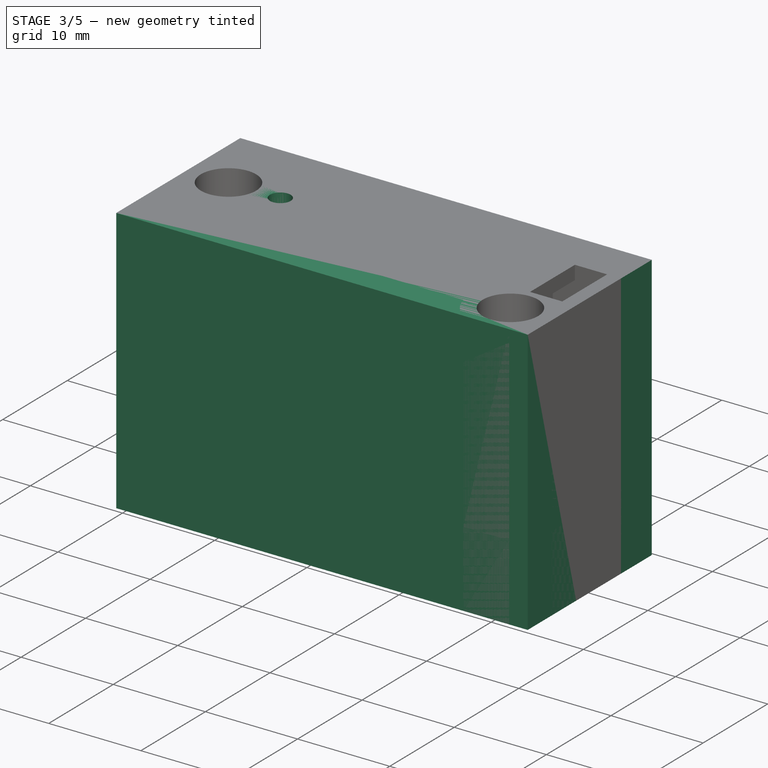
[diagram: stage 3 of 5 — iso view after this stage's code; geometry added in this stage tinted green]
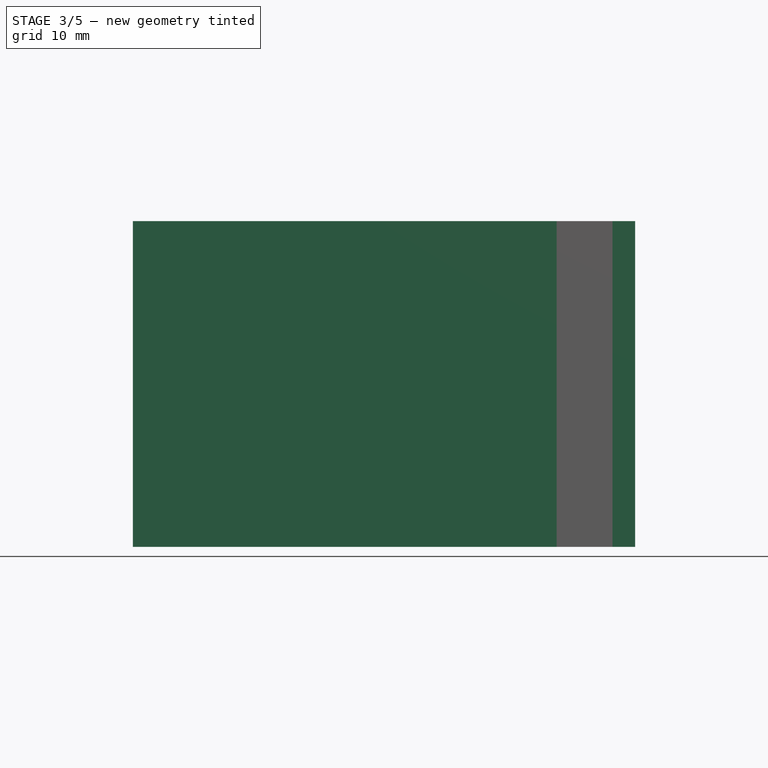
[diagram: stage 3 of 5 — front view after this stage's code; geometry added in this stage tinted green]
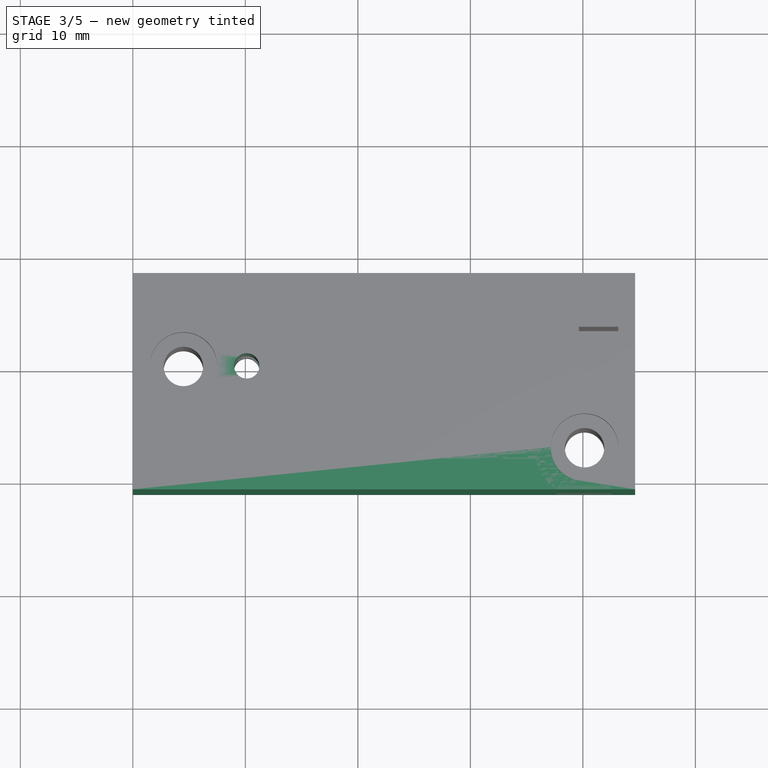
[diagram: stage 3 of 5 — top view after this stage's code; geometry added in this stage tinted green]
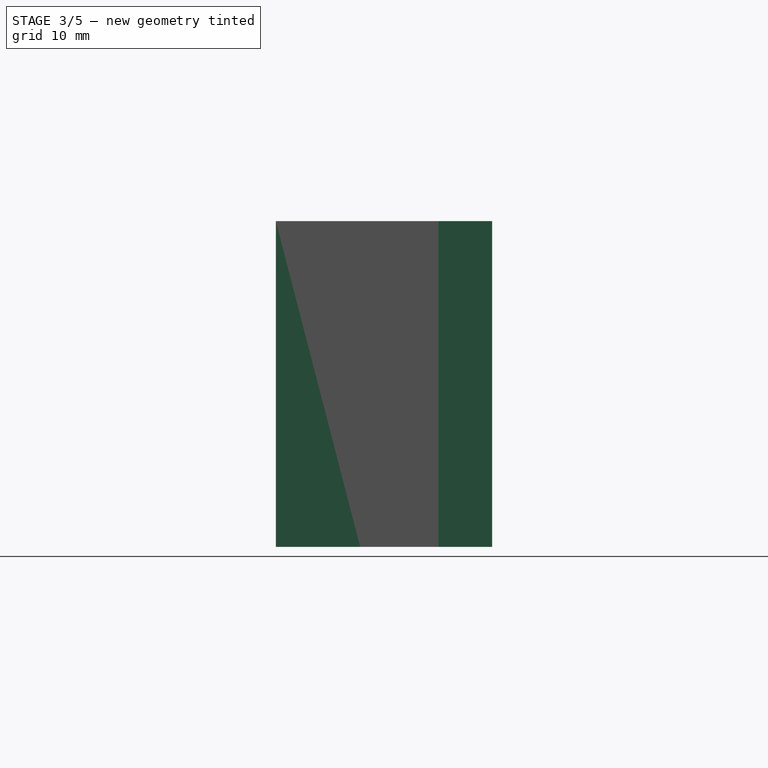
[diagram: stage 3 of 5 — right view after this stage's code; geometry added in this stage tinted green]
FEATURE [App::DocumentObjectGroup] GrExplode_Slice  label="V1 split"
  Group = -> [Slice_child0,Slice_child1]
FEATURE [Sketcher::SketchObject] Sketch014  label="BaseGeometry"
  FullyConstrained = true
  MapMode = 5
  Placement = pos=(0,0,0) rot=(1,0,0;1.5708rad)
  Support = -> [XZ_Plane001]
  sketch-geometry (13):
    g0: LineSegment StartX=0 StartY=0 StartZ=0 EndX=0 EndY=28.95 EndZ=0
    g1: LineSegment StartX=0 StartY=28.95 StartZ=0 EndX=39.65 EndY=28.95 EndZ=0
    g2: LineSegment StartX=39.65 StartY=28.95 StartZ=0 EndX=39.65 EndY=27.45 EndZ=0
    g3: LineSegment StartX=39.65 StartY=27.45 StartZ=0 EndX=18.75 EndY=27.45 EndZ=0
    g4: LineSegment StartX=18.75 StartY=27.45 StartZ=0 EndX=18.75 EndY=14.2 EndZ=0
    g5: LineSegment StartX=18.75 StartY=14.2 StartZ=0 EndX=23.7 EndY=14.2 EndZ=0
    g6: LineSegment StartX=23.7 StartY=14.2 StartZ=0 EndX=24.7 EndY=14.2 EndZ=0
    g7: LineSegment StartX=24.7 StartY=14.2 StartZ=0 EndX=24.7 EndY=6.7 EndZ=0
    g8: LineSegment StartX=24.7 StartY=6.7 StartZ=0 EndX=43.15 EndY=6.7 EndZ=0
    g9: LineSegment StartX=43.15 StartY=6.7 StartZ=0 EndX=43.15 EndY=28.95 EndZ=0
    g10: LineSegment StartX=43.15 StartY=28.95 StartZ=0 EndX=44.65 EndY=28.95 EndZ=0
    g11: LineSegment StartX=44.65 StartY=28.95 StartZ=0 EndX=44.65 EndY=0 EndZ=0
    g12: LineSegment StartX=44.65 StartY=0 StartZ=0 EndX=0 EndY=0 EndZ=0
  constraints (38):
    c: Coincident(g0,g-1)
    c: Vertical(g0)
    c: Coincident(g1,g0)
    c: Horizontal(g1)
    c: Coincident(g2,g1)
    c: Vertical(g2)
    c: Coincident(g3,g2)
    c: Horizontal(g3)
    c: Coincident(g4,g3)
    c: Vertical(g4)
    c: Coincident(g5,g4)
    c: Coincident(g6,g5)
    c: Horizontal(g6)
    c: Coincident(g7,g6)
    c: Vertical(g7)
    c: Coincident(g8,g7)
    c: Horizontal(g8)
    c: Coincident(g9,g8)
    c: Vertical(g9)
    c: Coincident(g10,g9)
    c: Horizontal(g10)
    c: Coincident(g11,g10)
    c: Vertical(g11)
    c: Coincident(g12,g11)
    c: Coincident(g12,g0)
    c: Horizontal(g12)
    c: Distance(g12) = 44.65
    c: Distance(g11) = 28.95
    c: Distance(g10) = 1.5
    c: Distance(g9) = 22.25
    c: Distance(g8) = 18.45
    c: Distance(g6) = 1
    c: Distance(g7) = 7.5
    c: Equal(g0,g11)
    c: Distance(g1) = 39.65
    c: Distance(g3) = 20.9
    c: Distance(g2) = 1.5
    c: Horizontal(g5)
FEATURE [PartDesign::Pad] Pad005
  Direction = (0,-1,-2e-16)
  Length = 6.95
  Length2 = 10
  Midplane = true
  Placement = pos=(0,0,0) rot=(1,0,0;1.5708rad)
  Profile = -> Sketch014
  ReferenceAxis = -> Sketch014 [N_Axis]
  Type = 0
FEATURE [Sketcher::SketchObject] Sketch015  label="ThroughHoles"
  FullyConstrained = true
  MapMode = 5
  Placement = pos=(0,0,28.95) rot=(0,0,1;3.14159rad)
  Support = -> [Pad005]
  sketch-geometry (4):
    g0: LineSegment StartX=0 StartY=0 StartZ=0 EndX=-4.5 EndY=0 EndZ=0
    g1: LineSegment StartX=-4.5 StartY=0 StartZ=0 EndX=-10.125 EndY=0 EndZ=0
    g2: Circle CenterX=-4.5 CenterY=0 CenterZ=0 NormalX=0 NormalY=0 NormalZ=1 AngleXU=0 Radius=1.75
    g3: Circle CenterX=-10.125 CenterY=0 CenterZ=0 NormalX=0 NormalY=0 NormalZ=1 AngleXU=0 Radius=1.125
  constraints (10):
    c: Coincident(g0,g-1)
    c: Horizontal(g0)
    c: Coincident(g1,g0)
    c: Horizontal(g1)
    c: Distance(g0) = 4.5
    c: Distance(g1) = 5.625
    c: Coincident(g2,g0)
    c: Coincident(g3,g1)
    c: Diameter(g3) = 2.25
    c: Diameter(g2) = 3.5
FEATURE [PartDesign::Pocket] Pocket007
  BaseFeature = -> Pad005
  Direction = (0,2e-16,-1)
  Length = 5
  Length2 = 5
  Placement = pos=(0,0,0) rot=(1,0,0;1.5708rad)
  Profile = -> Sketch015
  ReferenceAxis = -> Sketch015 [N_Axis]
  Type = 1
FEATURE [Sketcher::SketchObject] Sketch016  label="BoltHead1"
  FullyConstrained = true
  MapMode = 5
  Placement = pos=(0,0,28.95) rot=(0,0,1;3.14159rad)
  Support = -> [Pocket007]
  expr: Constraints[2] = Sketch015.Constraints[4]
  sketch-geometry (2):
    g0: LineSegment StartX=0 StartY=0 StartZ=0 EndX=-4.5 EndY=0 EndZ=0
    g1: Circle CenterX=-4.5 CenterY=0 CenterZ=0 NormalX=0 NormalY=0 NormalZ=1 AngleXU=0 Radius=3
  constraints (5):
    c: Coincident(g0,g-1)
    c: Horizontal(g0)
    c: Distance(g0) = 4.5
    c: Coincident(g1,g0)
    c: Diameter(g1) = 6
FEATURE [PartDesign::Pocket] Pocket008
  BaseFeature = -> Pocket007
  Direction = (0,2e-16,-1)
  Length = 3
  Length2 = 5
  Placement = pos=(0,0,0) rot=(1,0,0;1.5708rad)
  Profile = -> Sketch016
  ReferenceAxis = -> Sketch016 [N_Axis]
  Type = 0
FEATURE [Sketcher::SketchObject] Sketch017  label="NutHole1"
  FullyConstrained = true
  MapMode = 5
  Placement = pos=(0,0,0) rot=(1,0,0;3.14159rad)
  Support = -> [Pocket008]
  sketch-geometry (9):
    g0: LineSegment StartX=0 StartY=0 StartZ=0 EndX=4.5 EndY=0 EndZ=0
    g1: LineSegment StartX=4.5 StartY=0 StartZ=0 EndX=7.5 EndY=0 EndZ=0
    g2: LineSegment StartX=7.5 StartY=0 StartZ=0 EndX=6 EndY=2.59808 EndZ=0
    g3: LineSegment StartX=6 StartY=2.59808 StartZ=0 EndX=3 EndY=2.59808 EndZ=0
    g4: LineSegment StartX=3 StartY=2.59808 StartZ=0 EndX=1.5 EndY=4e-16 EndZ=0
    g5: LineSegment StartX=1.5 StartY=4e-16 StartZ=0 EndX=3 EndY=-2.59808 EndZ=0
    g6: LineSegment StartX=3 StartY=-2.59808 StartZ=0 EndX=6 EndY=-2.59808 EndZ=0
    g7: LineSegment StartX=6 StartY=-2.59808 StartZ=0 EndX=7.5 EndY=0 EndZ=0
    g8: Circle CenterX=4.5 CenterY=0 CenterZ=0 NormalX=0 NormalY=0 NormalZ=1 AngleXU=0 Radius=3
  constraints (21):
    c: Coincident(g0,g-1)
    c: Horizontal(g0)
    c: Distance(g0) = 4.5
    c: Coincident(g1,g0)
    c: Horizontal(g1)
    c: Distance(g1) = 3
    c: Coincident(g2,g3)
    c: Coincident(g3,g4)
    c: Coincident(g4,g5)
    c: Coincident(g5,g6)
    c: Coincident(g6,g7)
    c: Coincident(g7,g2)
    c: Equal(g2, g3-g7) x5
    c: PointOnObject(g2,g8)
    c: PointOnObject(g3,g8)
    c: PointOnObject(g4,g8)
    c: PointOnObject(g5,g8)
    c: PointOnObject(g6,g8)
    c: PointOnObject(g7,g8)
    c: Coincident(g8,g0)
    c: Coincident(g7,g1)
FEATURE [PartDesign::Pocket] Pocket009
  BaseFeature = -> Pocket008
  Direction = (0,-2e-16,1)
  Length = 2.5
  Length2 = 5
  Placement = pos=(0,0,0) rot=(1,0,0;1.5708rad)
  Profile = -> Sketch017
  ReferenceAxis = -> Sketch017 [N_Axis]
  Type = 0
FEATURE [Sketcher::SketchObject] Sketch018  label="SwitchHolder1"
  AttachmentOffset = pos=(0,0,2) rot=(0,0,1;0rad)
  FullyConstrained = true
  MapMode = 5
  Placement = pos=(0,-2,-4e-16) rot=(1,0,0;1.5708rad)
  Support = -> [XZ_Plane001]
  sketch-geometry (6):
    g0: LineSegment StartX=0 StartY=0 StartZ=0 EndX=36.25 EndY=0 EndZ=0
    g1: LineSegment StartX=36.25 StartY=0 StartZ=0 EndX=36.25 EndY=6.7 EndZ=0
    g2: LineSegment StartX=36.25 StartY=6.7 StartZ=0 EndX=37.25 EndY=6.7 EndZ=0
    g3: LineSegment StartX=37.25 StartY=6.7 StartZ=0 EndX=37.25 EndY=27.45 EndZ=0
    g4: LineSegment StartX=37.25 StartY=27.45 StartZ=0 EndX=36.25 EndY=27.45 EndZ=0
    g5: LineSegment StartX=36.25 StartY=27.45 StartZ=0 EndX=36.25 EndY=6.7 EndZ=0
  constraints (17):
    c: Coincident(g0,g-1)
    c: Horizontal(g0)
    c: Distance(g0) = 36.25
    c: Coincident(g1,g0)
    c: Vertical(g1)
    c: Distance(g1) = 6.7
    c: Coincident(g2,g3)
    c: Coincident(g3,g4)
    c: Coincident(g4,g5)
    c: Coincident(g5,g2)
    c: Horizontal(g2)
    c: Horizontal(g4)
    c: Vertical(g3)
    c: Vertical(g5)
    c: Coincident(g2,g1)
    c: Distance(g5) = 20.75
    c: Distance(g2) = 1
FEATURE [Sketcher::SketchObject] Sketch019  label="SwitchHolder2"
  AttachmentOffset = pos=(0,0,-2) rot=(0,0,1;0rad)
  FullyConstrained = true
  MapMode = 5
  Placement = pos=(0,2,4e-16) rot=(1,0,0;1.5708rad)
  Support = -> [XZ_Plane001]
  expr: Constraints[15] = Sketch018.Constraints[15]
  expr: Constraints[16] = Sketch018.Constraints[16]
  expr: Constraints[2] = Sketch018.Constraints[2]
  expr: Constraints[5] = Sketch018.Constraints[5]
  sketch-geometry (6):
    g0: LineSegment StartX=0 StartY=0 StartZ=0 EndX=36.25 EndY=0 EndZ=0
    g1: LineSegment StartX=36.25 StartY=0 StartZ=0 EndX=36.25 EndY=6.7 EndZ=0
    g2: LineSegment StartX=36.25 StartY=6.7 StartZ=0 EndX=37.25 EndY=6.7 EndZ=0
    g3: LineSegment StartX=37.25 StartY=6.7 StartZ=0 EndX=37.25 EndY=27.45 EndZ=0
    g4: LineSegment StartX=37.25 StartY=27.45 StartZ=0 EndX=36.25 EndY=27.45 EndZ=0
    g5: LineSegment StartX=36.25 StartY=27.45 StartZ=0 EndX=36.25 EndY=6.7 EndZ=0
  constraints (17):
    c: Coincident(g0,g-1)
    c: Horizontal(g0)
    c: Distance(g0) = 36.25
    c: Coincident(g1,g0)
    c: Vertical(g1)
    c: Distance(g1) = 6.7
    c: Coincident(g2,g3)
    c: Coincident(g3,g4)
    c: Coincident(g4,g5)
    c: Coincident(g5,g2)
    c: Horizontal(g2)
    c: Horizontal(g4)
    c: Vertical(g3)
    c: Vertical(g5)
    c: Coincident(g2,g1)
    c: Distance(g5) = 20.75
    c: Distance(g2) = 1
FEATURE [PartDesign::Pad] Pad006
  BaseFeature = -> Pocket009
  Direction = (0,-1,-2e-16)
  Length = 10
  Length2 = 10
  Placement = pos=(0,0,0) rot=(1,0,0;1.5708rad)
  Profile = -> Sketch018
  ReferenceAxis = -> Sketch018 [N_Axis]
  Type = 3
  UpToFace = -> Pocket009 [Face5]
FEATURE [PartDesign::Pad] Pad007
  BaseFeature = -> Pad006
  Direction = (0,-1,-2e-16)
  Length = 10
  Length2 = 10
  Placement = pos=(0,0,0) rot=(1,0,0;1.5708rad)
  Profile = -> Sketch019
  ReferenceAxis = -> Sketch019 [N_Axis]
  Type = 3
  UpToFace = -> Pad006 [Face4]
FEATURE [Sketcher::SketchObject] Sketch020  label="FrontWall"
  AttachmentOffset = pos=(0,0,3.475) rot=(0,0,1;0rad)
  ExternalGeometry = -> [Pad007]
  FullyConstrained = true
  MapMode = 5
  Placement = pos=(0,-3.475,-8e-16) rot=(1,0,0;1.5708rad)
  Support = -> [XZ_Plane001]
  sketch-geometry (4):
    g0: LineSegment StartX=0 StartY=0 StartZ=0 EndX=44.65 EndY=0 EndZ=0
    g1: LineSegment StartX=44.65 StartY=0 StartZ=0 EndX=44.65 EndY=28.95 EndZ=0
    g2: LineSegment StartX=44.65 StartY=28.95 StartZ=0 EndX=0 EndY=28.95 EndZ=0
    g3: LineSegment StartX=0 StartY=28.95 StartZ=0 EndX=0 EndY=0 EndZ=0
  constraints (10):
    c: Coincident(g0,g1)
    c: Coincident(g1,g2)
    c: Coincident(g2,g3)
    c: Coincident(g3,g0)
    c: Horizontal(g0)
    c: Horizontal(g2)
    c: Vertical(g1)
    c: Vertical(g3)
    c: Coincident(g0,g-1)
    c: Coincident(g1,g-3)
FEATURE [Sketcher::SketchObject] Sketch021  label="BackWall"
  AttachmentOffset = pos=(0,0,-3.475) rot=(0,0,1;0rad)
  ExternalGeometry = -> [Pad007]
  FullyConstrained = true
  MapMode = 5
  Placement = pos=(0,3.475,8e-16) rot=(1,0,0;1.5708rad)
  Support = -> [XZ_Plane001]
  sketch-geometry (4):
    g0: LineSegment StartX=0 StartY=0 StartZ=0 EndX=44.65 EndY=0 EndZ=0
    g1: LineSegment StartX=44.65 StartY=0 StartZ=0 EndX=44.65 EndY=28.95 EndZ=0
    g2: LineSegment StartX=44.65 StartY=28.95 StartZ=0 EndX=0 EndY=28.95 EndZ=0
    g3: LineSegment StartX=0 StartY=28.95 StartZ=0 EndX=0 EndY=0 EndZ=0
  constraints (10):
    c: Coincident(g0,g1)
    c: Coincident(g1,g2)
    c: Coincident(g2,g3)
    c: Coincident(g3,g0)
    c: Horizontal(g0)
    c: Horizontal(g2)
    c: Vertical(g1)
    c: Vertical(g3)
    c: Coincident(g0,g-1)
    c: Coincident(g1,g-3)
FEATURE [PartDesign::Pad] Pad008
  BaseFeature = -> Pad007
  Direction = (0,1,0)
  Length = 4.78
  Length2 = 10
  Placement = pos=(0,0,0) rot=(1,0,0;1.5708rad)
  Profile = -> Sketch021
  ReferenceAxis = -> Sketch021 [N_Axis]
  Type = 0
  UseCustomVector = true
FEATURE [PartDesign::Pad] Pad009
  BaseFeature = -> Pad008
  Direction = (0,-1,-2e-16)
  Length = 7.5
  Length2 = 10
  Placement = pos=(0,0,0) rot=(1,0,0;1.5708rad)
  Profile = -> Sketch020
  ReferenceAxis = -> Sketch020 [N_Axis]
  Type = 0
FEATURE [Sketcher::SketchObject] Sketch022  label="Bolt2Throughhole"
  ExternalGeometry = -> [Pad009]
  FullyConstrained = true
  MapMode = 5
  Placement = pos=(0,0,28.95) rot=(0,0,1;3.14159rad)
  Support = -> [Pad009]
  sketch-geometry (3):
    g0: LineSegment StartX=-44.65 StartY=10.975 StartZ=0 EndX=-40.15 EndY=10.975 EndZ=0
    g1: LineSegment StartX=-40.15 StartY=10.975 StartZ=0 EndX=-40.15 EndY=7.225 EndZ=0
    g2: Circle CenterX=-40.15 CenterY=7.225 CenterZ=0 NormalX=0 NormalY=0 NormalZ=1 AngleXU=0 Radius=1.75
  constraints (8):
    c: Coincident(g0,g-3)
    c: Horizontal(g0)
    c: Coincident(g1,g0)
    c: Vertical(g1)
    c: Distance(g0) = 4.5
    c: Distance(g1) = 3.75
    c: Coincident(g2,g1)
    c: Diameter(g2) = 3.5
FEATURE [Sketcher::SketchObject] Sketch023  label="Bolthead2"
  ExternalGeometry = -> [Pad009]
  FullyConstrained = true
  MapMode = 5
  Placement = pos=(0,0,28.95) rot=(0,0,1;3.14159rad)
  Support = -> [Pad009]
  expr: Constraints[4] = Sketch022.Constraints[4]
  expr: Constraints[5] = Sketch022.Constraints[5]
  sketch-geometry (3):
    g0: LineSegment StartX=-44.65 StartY=10.975 StartZ=0 EndX=-40.15 EndY=10.975 EndZ=0
    g1: LineSegment StartX=-40.15 StartY=10.975 StartZ=0 EndX=-40.15 EndY=7.225 EndZ=0
    g2: Circle CenterX=-40.15 CenterY=7.225 CenterZ=0 NormalX=0 NormalY=0 NormalZ=1 AngleXU=0 Radius=3
  constraints (8):
    c: Coincident(g0,g-3)
    c: Horizontal(g0)
    c: Coincident(g1,g0)
    c: Vertical(g1)
    c: Distance(g0) = 4.5
    c: Distance(g1) = 3.75
    c: Coincident(g2,g1)
    c: Diameter(g2) = 6
FEATURE [PartDesign::Pocket] Pocket010
  BaseFeature = -> Pad009
  Direction = (0,2e-16,-1)
  Length = 5
  Length2 = 5
  Placement = pos=(0,0,0) rot=(1,0,0;1.5708rad)
  Profile = -> Sketch022
  ReferenceAxis = -> Sketch022 [N_Axis]
  Type = 1
FEATURE [PartDesign::Pocket] Pocket011
  BaseFeature = -> Pocket010
  Direction = (0,2e-16,-1)
  Length = 3
  Length2 = 5
  Placement = pos=(0,0,0) rot=(1,0,0;1.5708rad)
  Profile = -> Sketch023
  ReferenceAxis = -> Sketch023 [N_Axis]
  Type = 0
FEATURE [Sketcher::SketchObject] Sketch024  label="Nut2Cutout"
  ExternalGeometry = -> [Pocket011]
  FullyConstrained = true
  MapMode = 5
  Placement = pos=(0,0,0) rot=(1,0,0;3.14159rad)
  Support = -> [Pocket011]
  sketch-geometry (10):
    g0: LineSegment StartX=44.65 StartY=10.975 StartZ=0 EndX=40.15 EndY=10.975 EndZ=0
    g1: LineSegment StartX=40.15 StartY=10.975 StartZ=0 EndX=40.15 EndY=7.225 EndZ=0
    g2: LineSegment StartX=40.15 StartY=7.225 StartZ=0 EndX=43.15 EndY=7.225 EndZ=0
    g3: LineSegment StartX=43.15 StartY=7.225 StartZ=0 EndX=41.65 EndY=9.82308 EndZ=0
    g4: LineSegment StartX=41.65 StartY=9.82308 StartZ=0 EndX=38.65 EndY=9.82308 EndZ=0
    g5: LineSegment StartX=38.65 StartY=9.82308 StartZ=0 EndX=37.15 EndY=7.225 EndZ=0
    g6: LineSegment StartX=37.15 StartY=7.225 StartZ=0 EndX=38.65 EndY=4.62692 EndZ=0
    g7: LineSegment StartX=38.65 StartY=4.62692 StartZ=0 EndX=41.65 EndY=4.62692 EndZ=0
    g8: LineSegment StartX=41.65 StartY=4.62692 StartZ=0 EndX=43.15 EndY=7.225 EndZ=0
    g9: Circle CenterX=40.15 CenterY=7.225 CenterZ=0 NormalX=0 NormalY=0 NormalZ=1 AngleXU=0 Radius=3
  constraints (24):
    c: Coincident(g0,g-3)
    c: Horizontal(g0)
    c: Coincident(g1,g0)
    c: Vertical(g1)
    c: Distance(g0) = 4.5
    c: Distance(g1) = 3.75
    c: Coincident(g2,g1)
    c: Horizontal(g2)
    c: Distance(g2) = 3
    c: Coincident(g3,g4)
    c: Coincident(g4,g5)
    c: Coincident(g5,g6)
    c: Coincident(g6,g7)
    c: Coincident(g7,g8)
    c: Coincident(g8,g3)
    c: Equal(g3, g4-g8) x5
    c: PointOnObject(g3,g9)
    c: PointOnObject(g4,g9)
    c: PointOnObject(g5,g9)
    c: PointOnObject(g6,g9)
    c: PointOnObject(g7,g9)
    c: PointOnObject(g8,g9)
    c: Coincident(g9,g1)
    c: Coincident(g8,g2)
FEATURE [PartDesign::Pocket] Pocket012
  BaseFeature = -> Pocket011
  Direction = (0,-2e-16,1)
  Length = 2.5
  Length2 = 5
  Placement = pos=(0,0,0) rot=(1,0,0;1.5708rad)
  Profile = -> Sketch024
  ReferenceAxis = -> Sketch024 [N_Axis]
  Type = 0
FEATURE [Sketcher::SketchObject] Sketch025  label="BallCavity"
  FullyConstrained = true
  MapMode = 5
  Placement = pos=(0,0,0) rot=(1,0,0;1.5708rad)
  Support = -> [XZ_Plane001]
  sketch-geometry (7):
    g0: LineSegment StartX=0 StartY=0 StartZ=0 EndX=0 EndY=8.25 EndZ=0
    g1: LineSegment StartX=0 StartY=8.25 StartZ=0 EndX=15.75 EndY=8.25 EndZ=0
    g2: LineSegment StartX=15.75 StartY=8.25 StartZ=0 EndX=15.75 EndY=15 EndZ=0
    g3: ArcOfCircle CenterX=15.75 CenterY=8.25 CenterZ=0 NormalX=0 NormalY=0 NormalZ=1 AngleXU=0 Radius=6.75 StartAngle=1.5708 EndAngle=3.14159
    g4: LineSegment StartX=15.75 StartY=15 StartZ=0 EndX=24.7 EndY=15 EndZ=0
    g5: LineSegment StartX=24.7 StartY=15 StartZ=0 EndX=24.7 EndY=8.25 EndZ=0
    g6: LineSegment StartX=24.7 StartY=8.25 StartZ=0 EndX=9 EndY=8.25 EndZ=0
  constraints (20):
    c: Coincident(g0,g-1)
    c: Vertical(g0)
    c: Coincident(g1,g0)
    c: Horizontal(g1)
    c: Distance(g0) = 8.25
    c: Distance(g1) = 15.75
    c: Coincident(g2,g1)
    c: Vertical(g2)
    c: Distance(g2) = 6.75
    c: Coincident(g3,g1)
    c: Coincident(g3,g2)
    c: PointOnObject(g3,g1)
    c: Coincident(g4,g3)
    c: Horizontal(g4)
    c: Coincident(g5,g4)
    c: Vertical(g5)
    c: Coincident(g6,g5)
    c: Coincident(g6,g3)
    c: Horizontal(g6)
    c: Distance(g6) = 15.7
FEATURE [PartDesign::Groove] Groove001
  Angle = 360
  Axis = (15.75,0,0)
  Base = (0,-1.8e-15,8.25)
  BaseFeature = -> Pocket012
  Placement = pos=(0,0,0) rot=(1,0,0;1.5708rad)
  Profile = -> Sketch025
  ReferenceAxis = -> Sketch025 [Axis1]
  Reversed = true
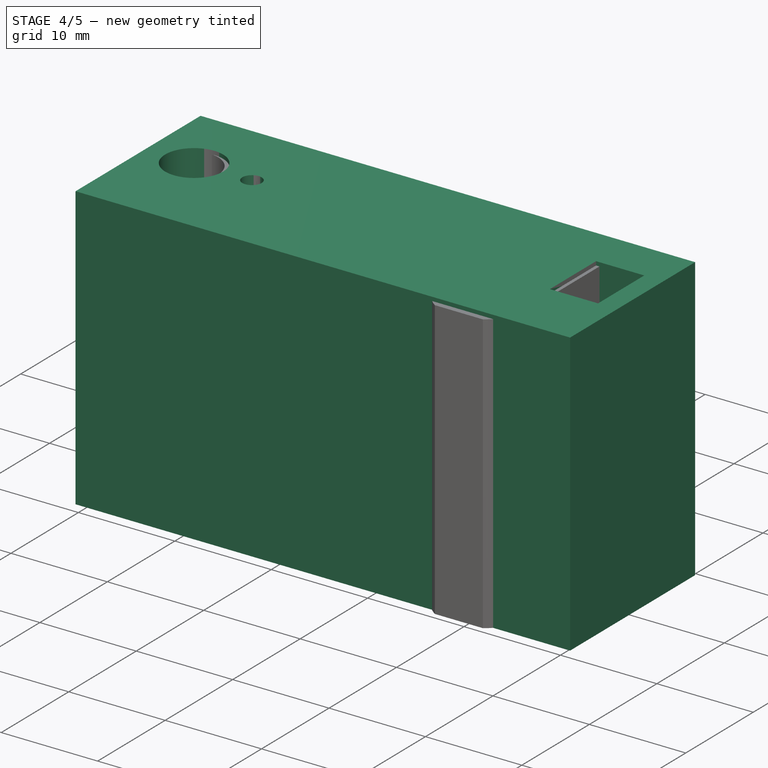
[diagram: stage 4 of 5 — iso view after this stage's code; geometry added in this stage tinted green]
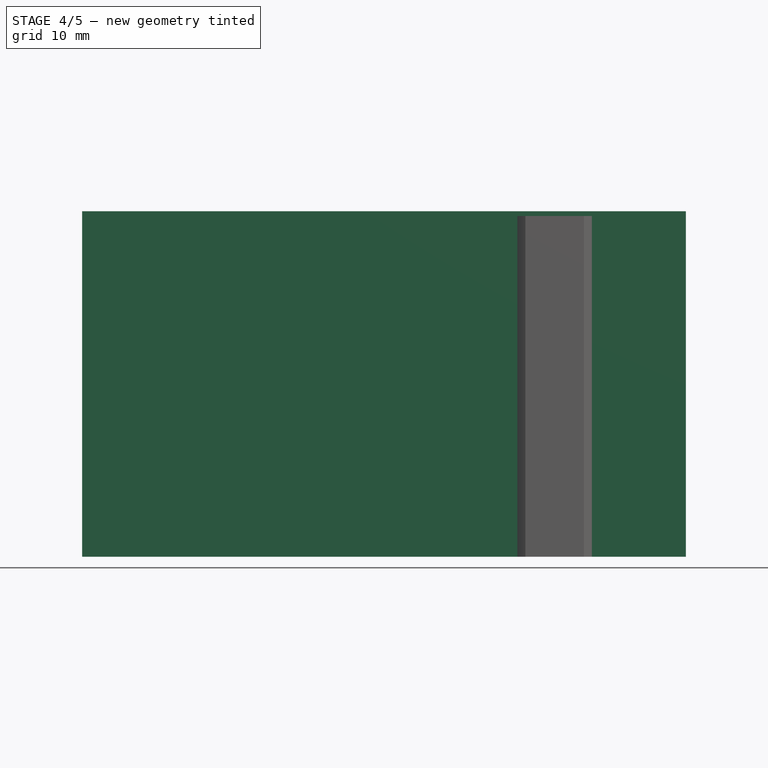
[diagram: stage 4 of 5 — front view after this stage's code; geometry added in this stage tinted green]
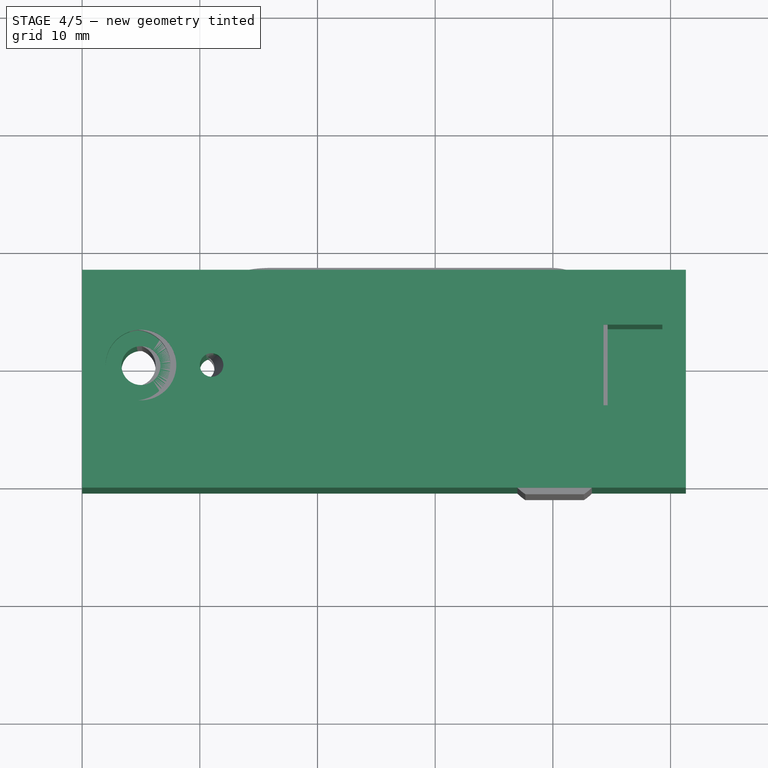
[diagram: stage 4 of 5 — top view after this stage's code; geometry added in this stage tinted green]
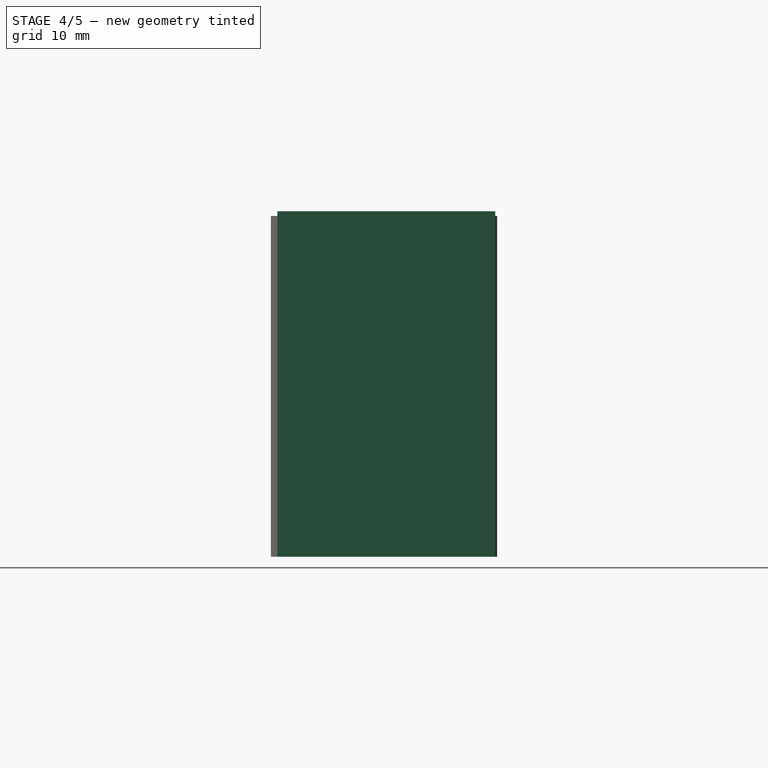
[diagram: stage 4 of 5 — right view after this stage's code; geometry added in this stage tinted green]
FEATURE [Sketcher::SketchObject] Sketch  label="InnerBaseGeometry"
  FullyConstrained = true
  MapMode = 5
  Placement = pos=(0,0,0) rot=(1,0,0;1.5708rad)
  Support = -> [XZ_Plane]
  sketch-geometry (13):
    g0: LineSegment StartX=0 StartY=0 StartZ=0 EndX=51.3 EndY=0 EndZ=0
    g1: LineSegment StartX=51.3 StartY=0 StartZ=0 EndX=51.3 EndY=29.35 EndZ=0
    g2: LineSegment StartX=51.3 StartY=29.35 StartZ=0 EndX=49.3 EndY=29.35 EndZ=0
    g3: LineSegment StartX=49.3 StartY=29.35 StartZ=0 EndX=49.3 EndY=7.2 EndZ=0
    g4: LineSegment StartX=49.3 StartY=7.2 StartZ=0 EndX=30.3 EndY=7.2 EndZ=0
    g5: LineSegment StartX=30.3 StartY=7.2 StartZ=0 EndX=30.3 EndY=14.7 EndZ=0
    g6: LineSegment StartX=30.3 StartY=14.7 StartZ=0 EndX=29.3 EndY=14.7 EndZ=0
    g7: LineSegment StartX=0 StartY=0 StartZ=0 EndX=0 EndY=29.35 EndZ=0
    g8: LineSegment StartX=0 StartY=29.35 StartZ=0 EndX=44.3 EndY=29.35 EndZ=0
    g9: LineSegment StartX=44.3 StartY=29.35 StartZ=0 EndX=44.3 EndY=27.85 EndZ=0
    g10: LineSegment StartX=44.3 StartY=27.85 StartZ=0 EndX=19.5 EndY=27.85 EndZ=0
    g11: LineSegment StartX=19.5 StartY=27.85 StartZ=0 EndX=19.5 EndY=14.7 EndZ=0
    g12: LineSegment StartX=29.3 StartY=14.7 StartZ=0 EndX=19.5 EndY=14.7 EndZ=0
  constraints (38):
    c: Coincident(g0,g-1)
    c: PointOnObject(g0,g-1)
    c: Coincident(g1,g0)
    c: Vertical(g1)
    c: Coincident(g2,g1)
    c: Horizontal(g2)
    c: Coincident(g3,g2)
    c: Vertical(g3)
    c: Distance(g0) = 51.3
    c: Distance(g1) = 29.35
    c: Distance(g2) = 2
    c: Distance(g3) = 22.15
    c: Coincident(g4,g3)
    c: Horizontal(g4)
    c: Coincident(g5,g4)
    c: Vertical(g5)
    c: Coincident(g6,g5)
    c: Horizontal(g6)
    c: Distance(g4) = 19
    c: Distance(g5) = 7.5
    c: Distance(g6) = 1
    c: Coincident(g7,g0)
    c: Vertical(g7)
    c: Coincident(g8,g7)
    c: Horizontal(g8)
    c: Vertical(g9)
    c: Coincident(g10,g9)
    c: Horizontal(g10)
    c: Equal(g7,g1)
    c: Distance(g8) = 44.3
    c: Coincident(g9,g8)
    c: Distance(g9) = 1.5
    c: Distance(g10) = 24.8
    c: Coincident(g11,g10)
    c: Vertical(g11)
    c: Coincident(g12,g6)
    c: Horizontal(g12)
    c: Coincident(g12,g11)
FEATURE [PartDesign::Pad] Pad
  Direction = (0,-1,-2e-16)
  Length = 6.85
  Length2 = 10
  Midplane = true
  Placement = pos=(0,0,0) rot=(1,0,0;1.5708rad)
  Profile = -> Sketch
  ReferenceAxis = -> Sketch [N_Axis]
  Type = 0
FEATURE [Sketcher::SketchObject] Sketch001  label="Throughholes"
  FullyConstrained = true
  MapMode = 5
  Placement = pos=(0,0,29.35) rot=(0,0,1;3.14159rad)
  Support = -> [Pad]
  sketch-geometry (4):
    g0: LineSegment StartX=0 StartY=0 StartZ=0 EndX=-5 EndY=0 EndZ=0
    g1: Circle CenterX=-5 CenterY=0 CenterZ=0 NormalX=0 NormalY=0 NormalZ=1 AngleXU=0 Radius=1.65
    g2: LineSegment StartX=-5 StartY=0 StartZ=0 EndX=-11 EndY=0 EndZ=0
    g3: Circle CenterX=-11 CenterY=0 CenterZ=0 NormalX=0 NormalY=0 NormalZ=1 AngleXU=0 Radius=1
  constraints (10):
    c: Coincident(g0,g-1)
    c: PointOnObject(g0,g-1)
    c: Distance(g0) = 5
    c: Coincident(g1,g0)
    c: Coincident(g2,g1)
    c: Horizontal(g2)
    c: Distance(g2) = 6
    c: Coincident(g3,g2)
    c: Diameter(g3) = 2
    c: Diameter(g1) = 3.3
FEATURE [PartDesign::Pocket] Pocket
  BaseFeature = -> Pad
  Direction = (0,2e-16,-1)
  Length = 0
  Length2 = 5
  Placement = pos=(0,0,0) rot=(1,0,0;1.5708rad)
  Profile = -> Sketch001
  ReferenceAxis = -> Sketch001 [N_Axis]
  Type = 3
  UpToFace = -> Pad [Face1]
FEATURE [Sketcher::SketchObject] Sketch002  label="MetalballCutout"
  FullyConstrained = true
  MapMode = 5
  Placement = pos=(0,0,0) rot=(1,0,0;1.5708rad)
  Support = -> [XZ_Plane]
  sketch-geometry (7):
    g0: LineSegment StartX=0 StartY=0 StartZ=0 EndX=0 EndY=8.6 EndZ=0
    g1: LineSegment StartX=0 StartY=8.6 StartZ=0 EndX=16.35 EndY=8.6 EndZ=0
    g2: LineSegment StartX=16.35 StartY=8.6 StartZ=0 EndX=16.35 EndY=14.95 EndZ=0
    g3: ArcOfCircle CenterX=16.35 CenterY=8.6 CenterZ=0 NormalX=0 NormalY=0 NormalZ=1 AngleXU=0 Radius=6.35 StartAngle=1.5708 EndAngle=3.14159
    g4: LineSegment StartX=16.35 StartY=14.95 StartZ=0 EndX=29.3 EndY=14.95 EndZ=0
    g5: LineSegment StartX=10 StartY=8.6 StartZ=0 EndX=29.3 EndY=8.6 EndZ=0
    g6: LineSegment StartX=29.3 StartY=14.95 StartZ=0 EndX=29.3 EndY=8.6 EndZ=0
  constraints (20):
    c: Coincident(g0,g-1)
    c: Vertical(g0)
    c: Coincident(g1,g0)
    c: Horizontal(g1)
    c: Distance(g0) = 8.6
    c: Distance(g1) = 16.35
    c: Coincident(g2,g1)
    c: Vertical(g2)
    c: Distance(g2) = 6.35
    c: Coincident(g3,g1)
    c: Coincident(g3,g2)
    c: PointOnObject(g3,g1)
    c: Coincident(g4,g3)
    c: Horizontal(g4)
    c: Coincident(g5,g3)
    c: Horizontal(g5)
    c: Coincident(g6,g4)
    c: Coincident(g6,g5)
    c: Distance(g4) = 12.95
    c: Vertical(g6)
FEATURE [Sketcher::SketchObject] Sketch003  label="BoltheadCutout"
  FullyConstrained = true
  MapMode = 5
  Placement = pos=(0,0,29.35) rot=(0,0,1;3.14159rad)
  Support = -> [Pocket]
  expr: Constraints[2] = Sketch001.Constraints[2]
  sketch-geometry (2):
    g0: LineSegment StartX=0 StartY=0 StartZ=0 EndX=-5 EndY=0 EndZ=0
    g1: Circle CenterX=-5 CenterY=0 CenterZ=0 NormalX=0 NormalY=0 NormalZ=1 AngleXU=0 Radius=3
  constraints (5):
    c: Coincident(g0,g-1)
    c: PointOnObject(g0,g-1)
    c: Distance(g0) = 5
    c: Coincident(g1,g0)
    c: Diameter(g1) = 6
FEATURE [PartDesign::Pocket] Pocket001
  BaseFeature = -> Pocket
  Direction = (0,2e-16,-1)
  Length = 3
  Length2 = 5
  Placement = pos=(0,0,0) rot=(1,0,0;1.5708rad)
  Profile = -> Sketch003
  ReferenceAxis = -> Sketch003 [N_Axis]
  Type = 0
FEATURE [Sketcher::SketchObject] Sketch004  label="HexnutCutOut"
  FullyConstrained = true
  MapMode = 5
  Placement = pos=(0,0,0) rot=(1,0,0;3.14159rad)
  Support = -> [Pocket001]
  sketch-geometry (9):
    g0: LineSegment StartX=0 StartY=0 StartZ=0 EndX=5 EndY=0 EndZ=0
    g1: LineSegment StartX=5 StartY=0 StartZ=0 EndX=8 EndY=0 EndZ=0
    g2: LineSegment StartX=8 StartY=0 StartZ=0 EndX=6.5 EndY=2.59808 EndZ=0
    g3: LineSegment StartX=6.5 StartY=2.59808 StartZ=0 EndX=3.5 EndY=2.59808 EndZ=0
    g4: LineSegment StartX=3.5 StartY=2.59808 StartZ=0 EndX=2 EndY=4e-16 EndZ=0
    g5: LineSegment StartX=2 StartY=4e-16 StartZ=0 EndX=3.5 EndY=-2.59808 EndZ=0
    g6: LineSegment StartX=3.5 StartY=-2.59808 StartZ=0 EndX=6.5 EndY=-2.59808 EndZ=0
    g7: LineSegment StartX=6.5 StartY=-2.59808 StartZ=0 EndX=8 EndY=0 EndZ=0
    g8: Circle CenterX=5 CenterY=0 CenterZ=0 NormalX=0 NormalY=0 NormalZ=1 AngleXU=0 Radius=3
  constraints (21):
    c: Coincident(g0,g-1)
    c: Horizontal(g0)
    c: Distance(g0) = 5
    c: Coincident(g1,g0)
    c: Horizontal(g1)
    c: Distance(g1) = 3
    c: Coincident(g2,g3)
    c: Coincident(g3,g4)
    c: Coincident(g4,g5)
    c: Coincident(g5,g6)
    c: Coincident(g6,g7)
    c: Coincident(g7,g2)
    c: Equal(g2, g3-g7) x5
    c: PointOnObject(g2,g8)
    c: PointOnObject(g3,g8)
    c: PointOnObject(g4,g8)
    c: PointOnObject(g5,g8)
    c: PointOnObject(g6,g8)
    c: PointOnObject(g7,g8)
    c: Coincident(g8,g1)
    c: Coincident(g7,g1)
FEATURE [PartDesign::Pocket] Pocket002
  BaseFeature = -> Pocket001
  Direction = (0,-2e-16,1)
  Length = 2.5
  Length2 = 5
  Placement = pos=(0,0,0) rot=(1,0,0;1.5708rad)
  Profile = -> Sketch004
  ReferenceAxis = -> Sketch004 [N_Axis]
  Type = 0
FEATURE [Sketcher::SketchObject] Sketch005  label="SwitchRetainer1"
  AttachmentOffset = pos=(0,0,1.8) rot=(0,0,1;0rad)
  FullyConstrained = true
  MapMode = 5
  Placement = pos=(0,-1.8,-4e-16) rot=(1,0,0;1.5708rad)
  Support = -> [XZ_Plane]
  expr: Constraints[10] = Sketch.Constraints[10]
  expr: Constraints[11] = Sketch.Constraints[11]
  expr: Constraints[18] = Sketch.Constraints[18]
  expr: Constraints[19] = Sketch.Constraints[19]
  expr: Constraints[20] = Sketch.Constraints[20]
  expr: Constraints[29] = Sketch.Constraints[29]
  expr: Constraints[31] = Sketch.Constraints[31]
  expr: Constraints[32] = Sketch.Constraints[32]
  expr: Constraints[8] = Sketch.Constraints[8]
  expr: Constraints[9] = Sketch.Constraints[9]
  sketch-geometry (18):
    g0: LineSegment StartX=0 StartY=0 StartZ=0 EndX=51.3 EndY=0 EndZ=0
    g1: LineSegment StartX=51.3 StartY=0 StartZ=0 EndX=51.3 EndY=29.35 EndZ=0
    g2: LineSegment StartX=51.3 StartY=29.35 StartZ=0 EndX=49.3 EndY=29.35 EndZ=0
    g3: LineSegment StartX=49.3 StartY=29.35 StartZ=0 EndX=49.3 EndY=7.2 EndZ=0
    g4: LineSegment StartX=49.3 StartY=7.2 StartZ=0 EndX=30.3 EndY=7.2 EndZ=0
    g5: LineSegment StartX=30.3 StartY=7.2 StartZ=0 EndX=30.3 EndY=14.7 EndZ=0
    g6: LineSegment StartX=30.3 StartY=14.7 StartZ=0 EndX=29.3 EndY=14.7 EndZ=0
    g7: LineSegment StartX=0 StartY=0 StartZ=0 EndX=0 EndY=29.35 EndZ=0
    g8: LineSegment StartX=0 StartY=29.35 StartZ=0 EndX=44.3 EndY=29.35 EndZ=0
    g9: LineSegment StartX=44.3 StartY=29.35 StartZ=0 EndX=44.3 EndY=27.85 EndZ=0
    g10: LineSegment StartX=44.3 StartY=27.85 StartZ=0 EndX=19.5 EndY=27.85 EndZ=0
    g11: LineSegment StartX=19.5 StartY=27.85 StartZ=0 EndX=19.5 EndY=14.7 EndZ=0
    g12: LineSegment StartX=29.3 StartY=14.7 StartZ=0 EndX=19.5 EndY=14.7 EndZ=0
    g13: LineSegment StartX=30.3 StartY=7.2 StartZ=0 EndX=40.05 EndY=7.2 EndZ=0
    g14: LineSegment StartX=40.05 StartY=7.2 StartZ=0 EndX=40.05 EndY=27.85 EndZ=0
    g15: LineSegment StartX=40.05 StartY=27.85 StartZ=0 EndX=41.3 EndY=27.85 EndZ=0
    g16: LineSegment StartX=41.3 StartY=27.85 StartZ=0 EndX=41.3 EndY=7.2 EndZ=0
    g17: LineSegment StartX=41.3 StartY=7.2 StartZ=0 EndX=40.05 EndY=7.2 EndZ=0
  constraints (52):
    c: Coincident(g0,g-1)
    c: PointOnObject(g0,g-1)
    c: Coincident(g1,g0)
    c: Vertical(g1)
    c: Coincident(g2,g1)
    c: Horizontal(g2)
    c: Coincident(g3,g2)
    c: Vertical(g3)
    c: Distance(g0) = 51.3
    c: Distance(g1) = 29.35
    c: Distance(g2) = 2
    c: Distance(g3) = 22.15
    c: Coincident(g4,g3)
    c: Horizontal(g4)
    c: Coincident(g5,g4)
    c: Vertical(g5)
    c: Coincident(g6,g5)
    c: Horizontal(g6)
    c: Distance(g4) = 19
    c: Distance(g5) = 7.5
    c: Distance(g6) = 1
    c: Coincident(g7,g0)
    c: Vertical(g7)
    c: Coincident(g8,g7)
    c: Horizontal(g8)
    c: Vertical(g9)
    c: Coincident(g10,g9)
    c: Horizontal(g10)
    c: Equal(g7,g1)
    c: Distance(g8) = 44.3
    c: Coincident(g9,g8)
    c: Distance(g9) = 1.5
    c: Distance(g10) = 24.8
    c: Coincident(g11,g10)
    c: Vertical(g11)
    c: Coincident(g12,g6)
    c: Horizontal(g12)
    c: Coincident(g12,g11)
    c: Coincident(g13,g4)
    c: Horizontal(g13)
    c: Distance(g13) = 9.75
    c: Coincident(g14,g13)
    c: PointOnObject(g14,g10)
    c: Vertical(g14)
    c: Coincident(g15,g14)
    c: Horizontal(g15)
    c: Vertical(g16)
    c: Coincident(g17,g16)
    c: Coincident(g17,g14)
    c: Horizontal(g17)
    c: Coincident(g16,g15)
    c: Distance(g15) = 1.25
FEATURE [Sketcher::SketchObject] Sketch006  label="SwitchRetainer2"
  AttachmentOffset = pos=(0,0,-1.8) rot=(0,0,1;0rad)
  FullyConstrained = true
  MapMode = 5
  Placement = pos=(0,1.8,4e-16) rot=(1,0,0;1.5708rad)
  Support = -> [XZ_Plane]
  expr: Constraints[10] = Sketch005.Constraints[10]
  expr: Constraints[11] = Sketch005.Constraints[11]
  expr: Constraints[18] = Sketch005.Constraints[18]
  expr: Constraints[19] = Sketch005.Constraints[19]
  expr: Constraints[20] = Sketch005.Constraints[20]
  expr: Constraints[29] = Sketch005.Constraints[29]
  expr: Constraints[31] = Sketch005.Constraints[31]
  expr: Constraints[32] = Sketch005.Constraints[32]
  expr: Constraints[40] = Sketch005.Constraints[40]
  expr: Constraints[51] = Sketch005.Constraints[51]
  expr: Constraints[8] = Sketch005.Constraints[8]
  expr: Constraints[9] = Sketch005.Constraints[9]
  sketch-geometry (18):
    g0: LineSegment StartX=0 StartY=0 StartZ=0 EndX=51.3 EndY=0 EndZ=0
    g1: LineSegment StartX=51.3 StartY=0 StartZ=0 EndX=51.3 EndY=29.35 EndZ=0
    g2: LineSegment StartX=51.3 StartY=29.35 StartZ=0 EndX=49.3 EndY=29.35 EndZ=0
    g3: LineSegment StartX=49.3 StartY=29.35 StartZ=0 EndX=49.3 EndY=7.2 EndZ=0
    g4: LineSegment StartX=49.3 StartY=7.2 StartZ=0 EndX=30.3 EndY=7.2 EndZ=0
    g5: LineSegment StartX=30.3 StartY=7.2 StartZ=0 EndX=30.3 EndY=14.7 EndZ=0
    g6: LineSegment StartX=30.3 StartY=14.7 StartZ=0 EndX=29.3 EndY=14.7 EndZ=0
    g7: LineSegment StartX=0 StartY=0 StartZ=0 EndX=0 EndY=29.35 EndZ=0
    g8: LineSegment StartX=0 StartY=29.35 StartZ=0 EndX=44.3 EndY=29.35 EndZ=0
    g9: LineSegment StartX=44.3 StartY=29.35 StartZ=0 EndX=44.3 EndY=27.85 EndZ=0
    g10: LineSegment StartX=44.3 StartY=27.85 StartZ=0 EndX=19.5 EndY=27.85 EndZ=0
    g11: LineSegment StartX=19.5 StartY=27.85 StartZ=0 EndX=19.5 EndY=14.7 EndZ=0
    g12: LineSegment StartX=29.3 StartY=14.7 StartZ=0 EndX=19.5 EndY=14.7 EndZ=0
    g13: LineSegment StartX=30.3 StartY=7.2 StartZ=0 EndX=40.05 EndY=7.2 EndZ=0
    g14: LineSegment StartX=40.05 StartY=7.2 StartZ=0 EndX=40.05 EndY=27.85 EndZ=0
    g15: LineSegment StartX=40.05 StartY=27.85 StartZ=0 EndX=41.3 EndY=27.85 EndZ=0
    g16: LineSegment StartX=41.3 StartY=27.85 StartZ=0 EndX=41.3 EndY=7.2 EndZ=0
    g17: LineSegment StartX=41.3 StartY=7.2 StartZ=0 EndX=40.05 EndY=7.2 EndZ=0
  constraints (52):
    c: Coincident(g0,g-1)
    c: PointOnObject(g0,g-1)
    c: Coincident(g1,g0)
    c: Vertical(g1)
    c: Coincident(g2,g1)
    c: Horizontal(g2)
    c: Coincident(g3,g2)
    c: Vertical(g3)
    c: Distance(g0) = 51.3
    c: Distance(g1) = 29.35
    c: Distance(g2) = 2
    c: Distance(g3) = 22.15
    c: Coincident(g4,g3)
    c: Horizontal(g4)
    c: Coincident(g5,g4)
    c: Vertical(g5)
    c: Coincident(g6,g5)
    c: Horizontal(g6)
    c: Distance(g4) = 19
    c: Distance(g5) = 7.5
    c: Distance(g6) = 1
    c: Coincident(g7,g0)
    c: Vertical(g7)
    c: Coincident(g8,g7)
    c: Horizontal(g8)
    c: Vertical(g9)
    c: Coincident(g10,g9)
    c: Horizontal(g10)
    c: Equal(g7,g1)
    c: Distance(g8) = 44.3
    c: Coincident(g9,g8)
    c: Distance(g9) = 1.5
    c: Distance(g10) = 24.8
    c: Coincident(g11,g10)
    c: Vertical(g11)
    c: Coincident(g12,g6)
    c: Horizontal(g12)
    c: Coincident(g12,g11)
    c: Coincident(g13,g4)
    c: Horizontal(g13)
    c: Distance(g13) = 9.75
    c: Coincident(g14,g13)
    c: PointOnObject(g14,g10)
    c: Vertical(g14)
    c: Coincident(g15,g14)
    c: Horizontal(g15)
    c: Vertical(g16)
    c: Coincident(g17,g16)
    c: Coincident(g17,g14)
    c: Horizontal(g17)
    c: Coincident(g16,g15)
    c: Distance(g15) = 1.25
FEATURE [PartDesign::Pad] Pad001
  BaseFeature = -> Pocket002
  Direction = (0,-1,-2e-16)
  Length = 10
  Length2 = 10
  Placement = pos=(0,0,0) rot=(1,0,0;1.5708rad)
  Profile = -> Sketch005
  ReferenceAxis = -> Sketch005 [N_Axis]
  Type = 3
  UpToFace = -> Pocket002 [Face4]
FEATURE [PartDesign::Pad] Pad002
  BaseFeature = -> Pad001
  Direction = (0,-1,-2e-16)
  Length = 10
  Length2 = 10
  Placement = pos=(0,0,0) rot=(1,0,0;1.5708rad)
  Profile = -> Sketch006
  ReferenceAxis = -> Sketch006 [N_Axis]
  Type = 3
  UpToFace = -> Pad001 [Face3]
FEATURE [Sketcher::SketchObject] Sketch007  label="Wall1"
  AttachmentOffset = pos=(0,0,3.425) rot=(0,0,1;0rad)
  FullyConstrained = true
  MapMode = 5
  Placement = pos=(0,-3.425,-8e-16) rot=(1,0,0;1.5708rad)
  Support = -> [XZ_Plane]
  expr: Constraints[10] = Sketch.Constraints[10]
  expr: Constraints[11] = Sketch.Constraints[11]
  expr: Constraints[18] = Sketch.Constraints[18]
  expr: Constraints[19] = Sketch.Constraints[19]
  expr: Constraints[20] = Sketch.Constraints[20]
  expr: Constraints[29] = Sketch.Constraints[29]
  expr: Constraints[31] = Sketch.Constraints[31]
  expr: Constraints[32] = Sketch.Constraints[32]
  expr: Constraints[8] = Sketch.Constraints[8]
  expr: Constraints[9] = Sketch.Constraints[9]
  sketch-geometry (14):
    g0: LineSegment StartX=0 StartY=0 StartZ=0 EndX=51.3 EndY=0 EndZ=0
    g1: LineSegment StartX=51.3 StartY=0 StartZ=0 EndX=51.3 EndY=29.35 EndZ=0
    g2: LineSegment StartX=51.3 StartY=29.35 StartZ=0 EndX=49.3 EndY=29.35 EndZ=0
    g3: LineSegment StartX=49.3 StartY=29.35 StartZ=0 EndX=49.3 EndY=7.2 EndZ=0
    g4: LineSegment StartX=49.3 StartY=7.2 StartZ=0 EndX=30.3 EndY=7.2 EndZ=0
    g5: LineSegment StartX=30.3 StartY=7.2 StartZ=0 EndX=30.3 EndY=14.7 EndZ=0
    g6: LineSegment StartX=30.3 StartY=14.7 StartZ=0 EndX=29.3 EndY=14.7 EndZ=0
    g7: LineSegment StartX=0 StartY=0 StartZ=0 EndX=0 EndY=29.35 EndZ=0
    g8: LineSegment StartX=0 StartY=29.35 StartZ=0 EndX=44.3 EndY=29.35 EndZ=0
    g9: LineSegment StartX=44.3 StartY=29.35 StartZ=0 EndX=44.3 EndY=27.85 EndZ=0
    g10: LineSegment StartX=44.3 StartY=27.85 StartZ=0 EndX=19.5 EndY=27.85 EndZ=0
    g11: LineSegment StartX=19.5 StartY=27.85 StartZ=0 EndX=19.5 EndY=14.7 EndZ=0
    g12: LineSegment StartX=29.3 StartY=14.7 StartZ=0 EndX=19.5 EndY=14.7 EndZ=0
    g13: LineSegment StartX=0 StartY=29.35 StartZ=0 EndX=51.3 EndY=29.35 EndZ=0
  constraints (40):
    c: Coincident(g0,g-1)
    c: PointOnObject(g0,g-1)
    c: Coincident(g1,g0)
    c: Vertical(g1)
    c: Coincident(g2,g1)
    c: Horizontal(g2)
    c: Coincident(g3,g2)
    c: Vertical(g3)
    c: Distance(g0) = 51.3
    c: Distance(g1) = 29.35
    c: Distance(g2) = 2
    c: Distance(g3) = 22.15
    c: Coincident(g4,g3)
    c: Horizontal(g4)
    c: Coincident(g5,g4)
    c: Vertical(g5)
    c: Coincident(g6,g5)
    c: Horizontal(g6)
    c: Distance(g4) = 19
    c: Distance(g5) = 7.5
    c: Distance(g6) = 1
    c: Coincident(g7,g0)
    c: Vertical(g7)
    c: Coincident(g8,g7)
    c: Horizontal(g8)
    c: Vertical(g9)
    c: Coincident(g10,g9)
    c: Horizontal(g10)
    c: Equal(g7,g1)
    c: Distance(g8) = 44.3
    c: Coincident(g9,g8)
    c: Distance(g9) = 1.5
    c: Distance(g10) = 24.8
    c: Coincident(g11,g10)
    c: Vertical(g11)
    c: Coincident(g12,g6)
    c: Horizontal(g12)
    c: Coincident(g12,g11)
    c: Coincident(g13,g7)
    c: Coincident(g13,g1)
FEATURE [Sketcher::SketchObject] Sketch008  label="Wall2"
  AttachmentOffset = pos=(0,0,-3.425) rot=(0,0,1;0rad)
  FullyConstrained = true
  MapMode = 5
  Placement = pos=(0,3.425,8e-16) rot=(1,0,0;1.5708rad)
  Support = -> [XZ_Plane]
  expr: Constraints[10] = Sketch007.Constraints[10]
  expr: Constraints[11] = Sketch007.Constraints[11]
  expr: Constraints[18] = Sketch007.Constraints[18]
  expr: Constraints[19] = Sketch007.Constraints[19]
  expr: Constraints[20] = Sketch007.Constraints[20]
  expr: Constraints[29] = Sketch007.Constraints[29]
  expr: Constraints[31] = Sketch007.Constraints[31]
  expr: Constraints[32] = Sketch007.Constraints[32]
  expr: Constraints[8] = Sketch007.Constraints[8]
  expr: Constraints[9] = Sketch007.Constraints[9]
  sketch-geometry (14):
    g0: LineSegment StartX=0 StartY=0 StartZ=0 EndX=51.3 EndY=0 EndZ=0
    g1: LineSegment StartX=51.3 StartY=0 StartZ=0 EndX=51.3 EndY=29.35 EndZ=0
    g2: LineSegment StartX=51.3 StartY=29.35 StartZ=0 EndX=49.3 EndY=29.35 EndZ=0
    g3: LineSegment StartX=49.3 StartY=29.35 StartZ=0 EndX=49.3 EndY=7.2 EndZ=0
    g4: LineSegment StartX=49.3 StartY=7.2 StartZ=0 EndX=30.3 EndY=7.2 EndZ=0
    g5: LineSegment StartX=30.3 StartY=7.2 StartZ=0 EndX=30.3 EndY=14.7 EndZ=0
    g6: LineSegment StartX=30.3 StartY=14.7 StartZ=0 EndX=29.3 EndY=14.7 EndZ=0
    g7: LineSegment StartX=0 StartY=0 StartZ=0 EndX=0 EndY=29.35 EndZ=0
    g8: LineSegment StartX=0 StartY=29.35 StartZ=0 EndX=44.3 EndY=29.35 EndZ=0
    g9: LineSegment StartX=44.3 StartY=29.35 StartZ=0 EndX=44.3 EndY=27.85 EndZ=0
    g10: LineSegment StartX=44.3 StartY=27.85 StartZ=0 EndX=19.5 EndY=27.85 EndZ=0
    g11: LineSegment StartX=19.5 StartY=27.85 StartZ=0 EndX=19.5 EndY=14.7 EndZ=0
    g12: LineSegment StartX=29.3 StartY=14.7 StartZ=0 EndX=19.5 EndY=14.7 EndZ=0
    g13: LineSegment StartX=0 StartY=29.35 StartZ=0 EndX=51.3 EndY=29.35 EndZ=0
  constraints (40):
    c: Coincident(g0,g-1)
    c: PointOnObject(g0,g-1)
    c: Coincident(g1,g0)
    c: Vertical(g1)
    c: Coincident(g2,g1)
    c: Horizontal(g2)
    c: Coincident(g3,g2)
    c: Vertical(g3)
    c: Distance(g0) = 51.3
    c: Distance(g1) = 29.35
    c: Distance(g2) = 2
    c: Distance(g3) = 22.15
    c: Coincident(g4,g3)
    c: Horizontal(g4)
    c: Coincident(g5,g4)
    c: Vertical(g5)
    c: Coincident(g6,g5)
    c: Horizontal(g6)
    c: Distance(g4) = 19
    c: Distance(g5) = 7.5
    c: Distance(g6) = 1
    c: Coincident(g7,g0)
    c: Vertical(g7)
    c: Coincident(g8,g7)
    c: Horizontal(g8)
    c: Vertical(g9)
    c: Coincident(g10,g9)
    c: Horizontal(g10)
    c: Equal(g7,g1)
    c: Distance(g8) = 44.3
    c: Coincident(g9,g8)
    c: Distance(g9) = 1.5
    c: Distance(g10) = 24.8
    c: Coincident(g11,g10)
    c: Vertical(g11)
    c: Coincident(g12,g6)
    c: Horizontal(g12)
    c: Coincident(g12,g11)
    c: Coincident(g13,g7)
    c: Coincident(g13,g1)
FEATURE [PartDesign::Pad] Pad003
  BaseFeature = -> Pad002
  Direction = (0,-1,-2e-16)
  Length = 7
  Length2 = 10
  Placement = pos=(0,0,0) rot=(1,0,0;1.5708rad)
  Profile = -> Sketch007
  ReferenceAxis = -> Sketch007 [N_Axis]
  Type = 0
FEATURE [PartDesign::Pad] Pad004
  BaseFeature = -> Pad003
  Direction = (0,1,0)
  Length = 4.67
  Length2 = 10
  Placement = pos=(0,0,0) rot=(1,0,0;1.5708rad)
  Profile = -> Sketch008
  ReferenceAxis = -> Sketch008 [N_Axis]
  Type = 0
  UseCustomVector = true
FEATURE [Sketcher::SketchObject] Sketch026  label="MaterialReduction"
  ExternalGeometry = -> [Pad009]
  FullyConstrained = true
  MapMode = 5
  Placement = pos=(0,0,28.95) rot=(0,0,1;3.14159rad)
  Support = -> [Groove001]
  expr: Constraints[14] = Sketch023.Constraints[4]
  expr: Constraints[15] = Sketch023.Constraints[5]
  sketch-geometry (22):
    g0: LineSegment StartX=0 StartY=0 StartZ=0 EndX=-4.5 EndY=0 EndZ=0
    g1: LineSegment StartX=-4.5 StartY=0 StartZ=0 EndX=-15.75 EndY=0 EndZ=0
    g2: LineSegment StartX=-15.75 StartY=0 StartZ=0 EndX=-15.75 EndY=8.25 EndZ=0
    g3: LineSegment StartX=-4.5 StartY=0 StartZ=0 EndX=-4.5 EndY=4.5 EndZ=0
    g4: LineSegment StartX=-4.5 StartY=0 StartZ=0 EndX=-4.5 EndY=-4.5 EndZ=0
    g5: LineSegment StartX=-44.65 StartY=10.975 StartZ=0 EndX=-40.15 EndY=10.975 EndZ=0
    g6: LineSegment StartX=-40.15 StartY=10.975 StartZ=0 EndX=-40.15 EndY=7.225 EndZ=0
    g7: ArcOfCircle CenterX=-4.5 CenterY=0 CenterZ=0 NormalX=0 NormalY=0 NormalZ=1 AngleXU=0 Radius=4.5 StartAngle=4.71239 EndAngle=7.85398
    g8: LineSegment StartX=-40.15 StartY=7.225 StartZ=0 EndX=-44.65 EndY=7.225 EndZ=0
    g9: ArcOfCircle CenterX=-15.75 CenterY=0 CenterZ=0 NormalX=0 NormalY=0 NormalZ=1 AngleXU=0 Radius=8.25 StartAngle=0.576931 EndAngle=1.5708
    g10: ArcOfCircle CenterX=-40.15 CenterY=7.225 CenterZ=0 NormalX=0 NormalY=0 NormalZ=1 AngleXU=0 Radius=4.5 StartAngle=0.229795 EndAngle=3.14159
    g11: LineSegment StartX=-4.5 StartY=4.5 StartZ=0 EndX=-8.83534 EndY=4.5 EndZ=0
    g12: LineSegment StartX=-15.75 StartY=8.25 StartZ=0 EndX=-35.7683 EndY=8.25 EndZ=0
    g13: LineSegment StartX=-15.75 StartY=0 StartZ=0 EndX=-15.75 EndY=-8.25 EndZ=0
    g14: ArcOfCircle CenterX=-15.75 CenterY=0 CenterZ=0 NormalX=0 NormalY=0 NormalZ=1 AngleXU=0 Radius=8.25 StartAngle=4.71239 EndAngle=5.70625
    g15: LineSegment StartX=-4.5 StartY=-4.5 StartZ=0 EndX=-8.83534 EndY=-4.5 EndZ=0
    g16: LineSegment StartX=-15.75 StartY=-8.25 StartZ=0 EndX=-15.75 EndY=-9.25 EndZ=0
    g17: LineSegment StartX=-15.75 StartY=-9.25 StartZ=0 EndX=1.25 EndY=-9.25 EndZ=0
    g18: LineSegment StartX=1.25 StartY=-9.25 StartZ=0 EndX=1.25 EndY=12.75 EndZ=0
    g19: LineSegment StartX=1.25 StartY=12.75 StartZ=0 EndX=-48.75 EndY=12.75 EndZ=0
    g20: LineSegment StartX=-48.75 StartY=12.75 StartZ=0 EndX=-48.75 EndY=7.225 EndZ=0
    g21: LineSegment StartX=-48.75 StartY=7.225 StartZ=0 EndX=-44.65 EndY=7.225 EndZ=0
  constraints (61):
    c: Coincident(g0,g-1)
    c: Horizontal(g0)
    c: Coincident(g1,g0)
    c: Horizontal(g1)
    c: Coincident(g2,g1)
    c: Vertical(g2)
    c: Coincident(g3,g0)
    c: Vertical(g3)
    c: Coincident(g4,g0)
    c: Vertical(g4)
    c: Coincident(g5,g-3)
    c: Horizontal(g5)
    c: Coincident(g6,g5)
    c: Vertical(g6)
    c: Distance(g5) = 4.5
    c: Distance(g6) = 3.75
    c: Distance(g0) = 4.5
    c: Distance(g3) = 4.5
    c: Distance(g2) = 8.25
    c: Distance(g1) = 11.25
    c: Coincident(g7,g0)
    c: Coincident(g7,g3)
    c: Coincident(g7,g4)
    c: Coincident(g8,g6)
    c: Horizontal(g8)
    c: Distance(g8) = 4.5
    c: Coincident(g9,g1)
    c: Coincident(g9,g2)
    c: Coincident(g10,g6)
    c: Coincident(g10,g8)
    c: Coincident(g11,g7)
    c: Coincident(g11,g9)
    c: Coincident(g12,g2)
    c: Coincident(g12,g10)
    c: Horizontal(g11)
    c: Horizontal(g12)
    c: Coincident(g13,g9)
    c: Vertical(g13)
    c: Distance(g13) = 8.25
    c: Coincident(g14,g9)
    c: Coincident(g14,g13)
    c: Coincident(g15,g7)
    c: Coincident(g15,g14)
    c: Horizontal(g15)
    c: Coincident(g16,g14)
    c: Vertical(g16)
    c: Coincident(g17,g16)
    c: Horizontal(g17)
    c: Coincident(g18,g17)
    c: Vertical(g18)
    c: Coincident(g19,g18)
    c: Horizontal(g19)
    c: Coincident(g20,g19)
    c: Vertical(g20)
    c: Coincident(g21,g20)
    c: Horizontal(g21)
    c: Coincident(g21,g10)
    c: Distance(g16) = 1
    c: Distance(g17) = 17
    c: Distance(g18) = 22
    c: Distance(g19) = 50
FEATURE [PartDesign::Pocket] Pocket013
  BaseFeature = -> Groove001
  Direction = (0,2e-16,-1)
  Length = 5
  Length2 = 5
  Placement = pos=(0,0,0) rot=(1,0,0;1.5708rad)
  Profile = -> Sketch026
  ReferenceAxis = -> Sketch026 [N_Axis]
  Type = 1
FEATURE [PartDesign::Fillet] Fillet002
  Base = -> Pocket013 [Edge50]
  BaseFeature = -> Pocket013
  Placement = pos=(0,0,0) rot=(1,0,0;1.5708rad)
  Radius = 4.75
  SupportTransform = false
  UseAllEdges = false
FEATURE [PartDesign::Chamfer] Chamfer001
  Angle = 45
  Base = -> Fillet002 [Edge40]
  BaseFeature = -> Fillet002
  ChamferType = 1
  FlipDirection = false
  Placement = pos=(0,0,0) rot=(1,0,0;1.5708rad)
  Size = 0.75
  Size2 = 13
  SupportTransform = false
  UseAllEdges = false
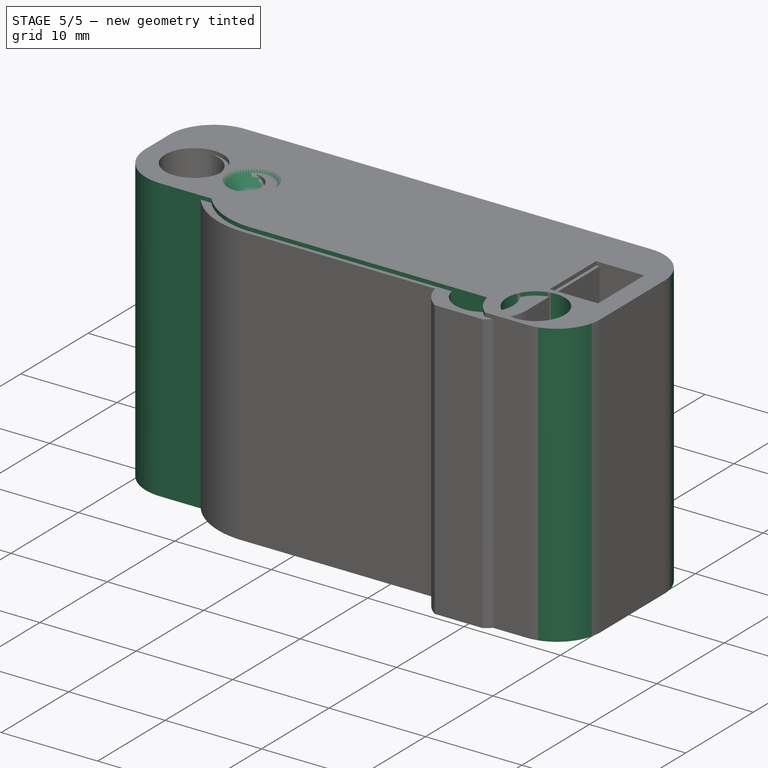
[diagram: stage 5 of 5 — iso view after this stage's code; geometry added in this stage tinted green]
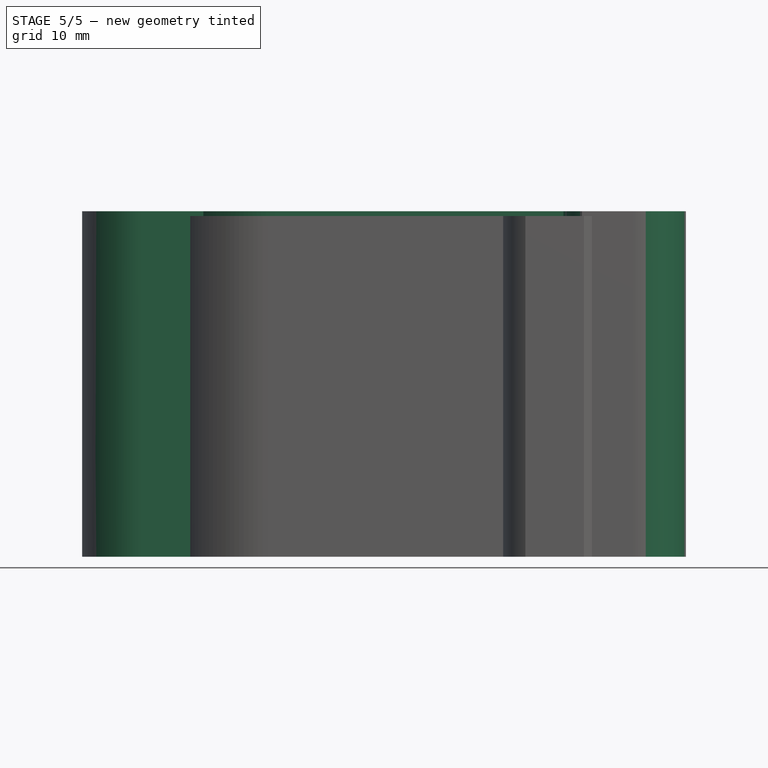
[diagram: stage 5 of 5 — front view after this stage's code; geometry added in this stage tinted green]
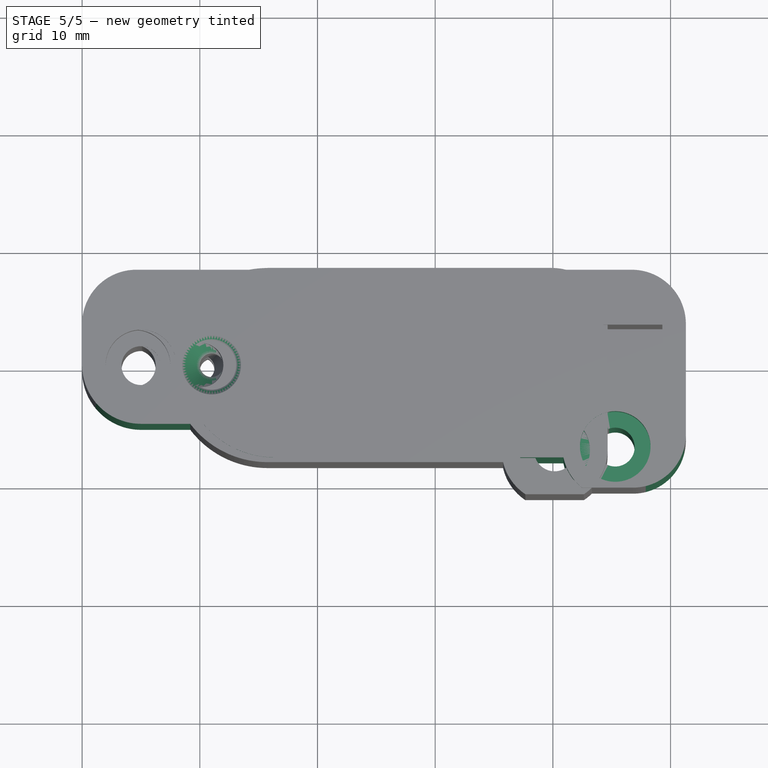
[diagram: stage 5 of 5 — top view after this stage's code; geometry added in this stage tinted green]
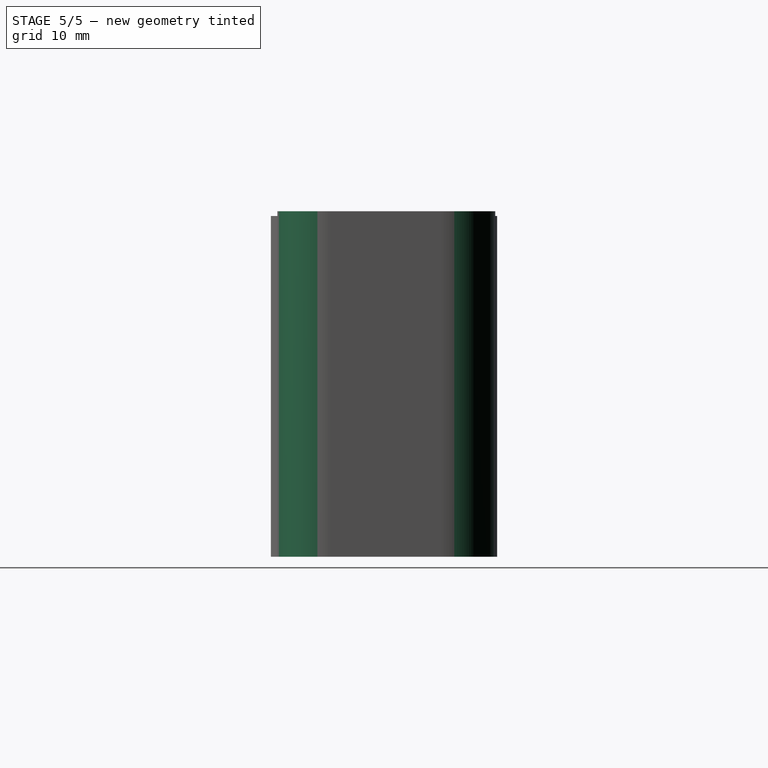
[diagram: stage 5 of 5 — right view after this stage's code; geometry added in this stage tinted green]
FEATURE [PartDesign::Groove] Groove
  Angle = 360
  Axis = (16.35,0,0)
  Base = (0,-1.9e-15,8.6)
  BaseFeature = -> Pad004
  Placement = pos=(0,0,0) rot=(1,0,0;1.5708rad)
  Profile = -> Sketch002
  ReferenceAxis = -> Sketch002 [Axis1]
  Reversed = true
FEATURE [Sketcher::SketchObject] Sketch009  label="BoltThroughhole2"
  ExternalGeometry = -> [Groove]
  FullyConstrained = true
  MapMode = 5
  Placement = pos=(-1.1464e-12,0,29.35) rot=(0,0,1;3.14159rad)
  Support = -> [Groove]
  sketch-geometry (4):
    g0: LineSegment StartX=-51.3 StartY=10.425 StartZ=0 EndX=-51.3 EndY=9.925 EndZ=0
    g1: LineSegment StartX=-51.3 StartY=9.925 StartZ=0 EndX=-51.3 EndY=6.925 EndZ=0
    g2: LineSegment StartX=-51.3 StartY=6.925 StartZ=0 EndX=-45.3 EndY=6.925 EndZ=0
    g3: Circle CenterX=-45.3 CenterY=6.925 CenterZ=0 NormalX=0 NormalY=0 NormalZ=1 AngleXU=0 Radius=1.65
  constraints (11):
    c: Coincident(g0,g-3)
    c: Vertical(g0)
    c: Distance(g0) = 0.5
    c: Coincident(g1,g0)
    c: Vertical(g1)
    c: Distance(g1) = 3
    c: Coincident(g2,g1)
    c: Horizontal(g2)
    c: Distance(g2) = 6
    c: Coincident(g3,g2)
    c: Diameter(g3) = 3.3
FEATURE [Sketcher::SketchObject] Sketch010  label="BoltheadCutout2"
  ExternalGeometry = -> [Groove]
  FullyConstrained = true
  MapMode = 5
  Placement = pos=(-1.1464e-12,0,29.35) rot=(0,0,1;3.14159rad)
  Support = -> [Groove]
  expr: Constraints[2] = Sketch009.Constraints[2]
  expr: Constraints[5] = Sketch009.Constraints[5]
  expr: Constraints[8] = Sketch009.Constraints[8]
  sketch-geometry (4):
    g0: LineSegment StartX=-51.3 StartY=10.425 StartZ=0 EndX=-51.3 EndY=9.925 EndZ=0
    g1: LineSegment StartX=-51.3 StartY=9.925 StartZ=0 EndX=-51.3 EndY=6.925 EndZ=0
    g2: LineSegment StartX=-51.3 StartY=6.925 StartZ=0 EndX=-45.3 EndY=6.925 EndZ=0
    g3: Circle CenterX=-45.3 CenterY=6.925 CenterZ=0 NormalX=0 NormalY=0 NormalZ=1 AngleXU=0 Radius=3
  constraints (11):
    c: Coincident(g0,g-3)
    c: Vertical(g0)
    c: Distance(g0) = 0.5
    c: Coincident(g1,g0)
    c: Vertical(g1)
    c: Distance(g1) = 3
    c: Coincident(g2,g1)
    c: Horizontal(g2)
    c: Distance(g2) = 6
    c: Coincident(g3,g2)
    c: Diameter(g3) = 6
FEATURE [PartDesign::Pocket] Pocket003
  BaseFeature = -> Groove
  Direction = (3.91e-14,2e-16,-1)
  Length = 0
  Length2 = 5
  Placement = pos=(0,0,0) rot=(1,0,0;1.5708rad)
  Profile = -> Sketch009
  ReferenceAxis = -> Sketch009 [N_Axis]
  Type = 3
  UpToFace = -> Groove [Face4]
FEATURE [PartDesign::Pocket] Pocket004
  BaseFeature = -> Pocket003
  Direction = (3.91e-14,2e-16,-1)
  Length = 3
  Length2 = 5
  Placement = pos=(0,0,0) rot=(1,0,0;1.5708rad)
  Profile = -> Sketch010
  ReferenceAxis = -> Sketch010 [N_Axis]
  Type = 0
FEATURE [Sketcher::SketchObject] Sketch011  label="HexnutCutout2"
  ExternalGeometry = -> [Pocket004]
  FullyConstrained = true
  MapMode = 5
  Placement = pos=(0,0,0) rot=(1,0,0;3.14159rad)
  Support = -> [Pocket004]
  sketch-geometry (10):
    g0: LineSegment StartX=51.3 StartY=10.425 StartZ=0 EndX=51.3 EndY=6.925 EndZ=0
    g1: LineSegment StartX=51.3 StartY=6.925 StartZ=0 EndX=45.3 EndY=6.925 EndZ=0
    g2: LineSegment StartX=45.3 StartY=6.925 StartZ=0 EndX=42.3 EndY=6.925 EndZ=0
    g3: LineSegment StartX=42.3 StartY=6.925 StartZ=0 EndX=43.8 EndY=4.32692 EndZ=0
    g4: LineSegment StartX=43.8 StartY=4.32692 StartZ=0 EndX=46.8 EndY=4.32692 EndZ=0
    g5: LineSegment StartX=46.8 StartY=4.32692 StartZ=0 EndX=48.3 EndY=6.925 EndZ=0
    g6: LineSegment StartX=48.3 StartY=6.925 StartZ=0 EndX=46.8 EndY=9.52308 EndZ=0
    g7: LineSegment StartX=46.8 StartY=9.52308 StartZ=0 EndX=43.8 EndY=9.52308 EndZ=0
    g8: LineSegment StartX=43.8 StartY=9.52308 StartZ=0 EndX=42.3 EndY=6.925 EndZ=0
    g9: Circle CenterX=45.3 CenterY=6.925 CenterZ=0 NormalX=0 NormalY=0 NormalZ=1 AngleXU=0 Radius=3
  constraints (24):
    c: Coincident(g0,g-3)
    c: Vertical(g0)
    c: Distance(g0) = 3.5
    c: Coincident(g1,g0)
    c: Horizontal(g1)
    c: Distance(g1) = 6
    c: Coincident(g2,g1)
    c: Horizontal(g2)
    c: Distance(g2) = 3
    c: Coincident(g3,g4)
    c: Coincident(g4,g5)
    c: Coincident(g5,g6)
    c: Coincident(g6,g7)
    c: Coincident(g7,g8)
    c: Coincident(g8,g3)
    c: Equal(g3, g4-g8) x5
    c: PointOnObject(g3,g9)
    c: PointOnObject(g4,g9)
    c: PointOnObject(g5,g9)
    c: PointOnObject(g6,g9)
    c: PointOnObject(g7,g9)
    c: PointOnObject(g8,g9)
    c: Coincident(g9,g1)
    c: Coincident(g8,g2)
FEATURE [PartDesign::Pocket] Pocket005
  BaseFeature = -> Pocket004
  Direction = (0,-2e-16,1)
  Length = 2.5
  Length2 = 5
  Placement = pos=(0,0,0) rot=(1,0,0;1.5708rad)
  Profile = -> Sketch011
  ReferenceAxis = -> Sketch011 [N_Axis]
  Type = 0
FEATURE [Sketcher::SketchObject] Sketch012  label="MaterialSavingCutout"
  ExternalGeometry = -> [Pocket005]
  FullyConstrained = true
  MapMode = 5
  Placement = pos=(-1.1464e-12,0,29.35) rot=(0,0,1;3.14159rad)
  Support = -> [Pocket005]
  expr: Constraints[2] = Sketch001.Constraints[2]
  sketch-geometry (14):
    g0: LineSegment StartX=0 StartY=0 StartZ=0 EndX=-5 EndY=0 EndZ=0
    g1: ArcOfCircle CenterX=-5 CenterY=0 CenterZ=0 NormalX=0 NormalY=0 NormalZ=1 AngleXU=0 Radius=5 StartAngle=0 EndAngle=1.5708
    g2: LineSegment StartX=-5 StartY=0 StartZ=0 EndX=-16.35 EndY=0 EndZ=0
    g3: LineSegment StartX=-16.35 StartY=0 StartZ=0 EndX=-16.35 EndY=7.85 EndZ=0
    g4: ArcOfCircle CenterX=-16.35 CenterY=0 CenterZ=0 NormalX=0 NormalY=0 NormalZ=1 AngleXU=0 Radius=7.85 StartAngle=0.690526 EndAngle=1.5708
    g5: LineSegment StartX=-51.3 StartY=10.425 StartZ=0 EndX=-51.3 EndY=6.925 EndZ=0
    g6: LineSegment StartX=-51.3 StartY=6.925 StartZ=0 EndX=-45.3 EndY=6.925 EndZ=0
    g7: LineSegment StartX=-45.3 StartY=6.925 StartZ=0 EndX=-45.3 EndY=11.425 EndZ=0
    g8: ArcOfCircle CenterX=-45.3 CenterY=6.925 CenterZ=0 NormalX=0 NormalY=0 NormalZ=1 AngleXU=0 Radius=4.5 StartAngle=0.207031 EndAngle=1.5708
    g9: LineSegment StartX=-5 StartY=5 StartZ=0 EndX=-10.2983 EndY=5 EndZ=0
    g10: LineSegment StartX=-16.35 StartY=7.85 StartZ=0 EndX=-40.8961 EndY=7.85 EndZ=0
    g11: LineSegment StartX=-5 StartY=0 StartZ=0 EndX=-5 EndY=5 EndZ=0
    g12: LineSegment StartX=-45.3 StartY=11.425 StartZ=0 EndX=0 EndY=11.425 EndZ=0
    g13: LineSegment StartX=0 StartY=11.425 StartZ=0 EndX=0 EndY=0 EndZ=0
  constraints (38):
    c: Coincident(g0,g-1)
    c: PointOnObject(g0,g-1)
    c: Distance(g0) = 5
    c: Coincident(g1,g0)
    c: Coincident(g1,g0)
    c: Coincident(g2,g1)
    c: Horizontal(g2)
    c: Distance(g2) = 11.35
    c: Coincident(g3,g2)
    c: Vertical(g3)
    c: Distance(g3) = 7.85
    c: Coincident(g4,g2)
    c: Coincident(g4,g3)
    c: Coincident(g5,g-3)
    c: Vertical(g5)
    c: Coincident(g6,g5)
    c: Horizontal(g6)
    c: Distance(g5) = 3.5
    c: Distance(g6) = 6
    c: Coincident(g7,g6)
    c: Vertical(g7)
    c: Distance(g7) = 4.5
    c: Coincident(g8,g6)
    c: Coincident(g8,g7)
    c: Coincident(g9,g1)
    c: Coincident(g9,g4)
    c: Coincident(g10,g4)
    c: Coincident(g10,g8)
    c: Horizontal(g9)
    c: Horizontal(g10)
    c: Coincident(g11,g1)
    c: Coincident(g11,g1)
    c: Vertical(g11)
    c: Coincident(g12,g8)
    c: PointOnObject(g12,g-2)
    c: Horizontal(g12)
    c: Coincident(g13,g12)
    c: Coincident(g13,g1)
FEATURE [PartDesign::Pocket] Pocket006
  BaseFeature = -> Pocket005
  Direction = (3.91e-14,2e-16,-1)
  Length = 5
  Length2 = 5
  Placement = pos=(0,0,0) rot=(1,0,0;1.5708rad)
  Profile = -> Sketch012
  ReferenceAxis = -> Sketch012 [N_Axis]
  Type = 1
FEATURE [PartDesign::Chamfer] Chamfer
  Angle = 45
  Base = -> Pocket006 [Edge87]
  BaseFeature = -> Pocket006
  ChamferType = 0
  FlipDirection = false
  Placement = pos=(0,0,0) rot=(1,0,0;1.5708rad)
  Size = 1.5
  Size2 = 1
  SupportTransform = false
  UseAllEdges = false
FEATURE [PartDesign::Fillet] Fillet
  Base = -> Chamfer [Edge66]
  BaseFeature = -> Chamfer
  Placement = pos=(0,0,0) rot=(1,0,0;1.5708rad)
  Radius = 4.5
  SupportTransform = false
  UseAllEdges = false
FEATURE [PartDesign::Fillet] Fillet001
  Base = -> Fillet [Edge116,Edge113]
  BaseFeature = -> Fillet
  Placement = pos=(0,0,0) rot=(1,0,0;1.5708rad)
  Radius = 4.6
  SupportTransform = false
  UseAllEdges = false
FEATURE [Sketcher::SketchObject] Sketch013  label="SlicePlaneSketch"
  AttachmentOffset = pos=(0,0,-8.6) rot=(0,0,1;0rad)
  FullyConstrained = true
  MapMode = 5
  Placement = pos=(0,0,8.6) rot=(1,0,0;3.14159rad)
  Support = -> [Fillet001]
  sketch-geometry (6):
    g0: LineSegment StartX=0 StartY=0 StartZ=0 EndX=-5 EndY=0 EndZ=0
    g1: LineSegment StartX=-5 StartY=0 StartZ=0 EndX=-5 EndY=15 EndZ=0
    g2: LineSegment StartX=-5 StartY=15 StartZ=0 EndX=55 EndY=15 EndZ=0
    g3: LineSegment StartX=55 StartY=15 StartZ=0 EndX=55 EndY=-15 EndZ=0
    g4: LineSegment StartX=55 StartY=-15 StartZ=0 EndX=-5 EndY=-15 EndZ=0
    g5: LineSegment StartX=-5 StartY=-15 StartZ=0 EndX=-5 EndY=0 EndZ=0
  constraints (17):
    c: Coincident(g0,g-1)
    c: Horizontal(g0)
    c: Coincident(g1,g0)
    c: Vertical(g1)
    c: Coincident(g2,g1)
    c: Horizontal(g2)
    c: Coincident(g3,g2)
    c: Vertical(g3)
    c: Coincident(g4,g3)
    c: Horizontal(g4)
    c: Coincident(g5,g4)
    c: Coincident(g5,g0)
    c: Distance(g0) = 5
    c: Distance(g1) = 15
    c: Vertical(g5)
    c: Distance(g2) = 60
    c: Distance(g5) = 15
FEATURE [PartDesign::Body] Body  label="SensorBody"
  Group = -> [Sketch,Pad,Sketch001,Pocket,Sketch002,Sketch003,Pocket001,Sketch004,Pocket002,Sketch005,Sketch006,Pad001,Pad002,Sketch007,Sketch008,Pad003,Pad004,Groove,Sketch009,Sketch010,Pocket003,Pocket004,Sketch011,Pocket005,Sketch012,Pocket006,Chamfer,Fillet,Fillet001,Sketch013]
  Origin = -> Origin
  Tip = -> Fillet001
FEATURE [Part::Face] Face  label="SlicePlane"
  FaceMakerClass = Part::FaceMakerBullseye
  Sources = -> [Sketch013]
FEATURE [Part::FeaturePython] Slice  # WARN: FeaturePython — macro-defined, semantics opaque (R4)
  Base = -> Body
  Mode = 1
  Tolerance = 0
  Tools = -> [Face]
FEATURE [Part::FeaturePython] Slice_child0  label="SensorBodyTop"  # WARN: FeaturePython — macro-defined, semantics opaque (R4)
  Base = -> Slice
  FilterType = 1
  Invert = false
  OverrideMaxVal = 0
  WindowFrom = 80
  WindowTo = 100
  items = 0
FEATURE [Part::FeaturePython] Slice_child1  label="SensorBodyBottom"  # WARN: FeaturePython — macro-defined, semantics opaque (R4)
  Base = -> Slice
  FilterType = 1
  Invert = false
  OverrideMaxVal = 0
  WindowFrom = 80
  WindowTo = 100
  items = 1
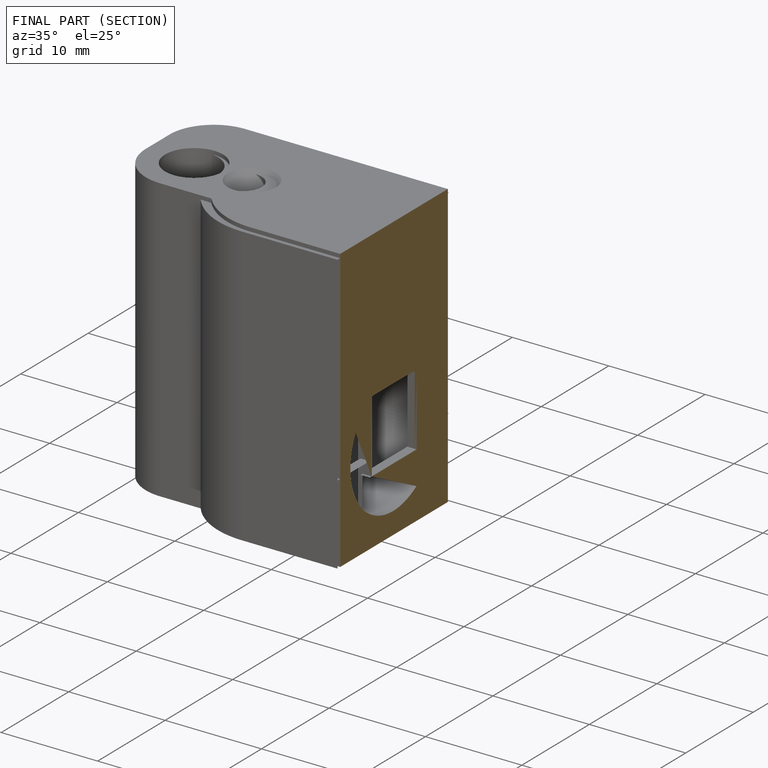
[diagram: finished part — half-section view (interior)]
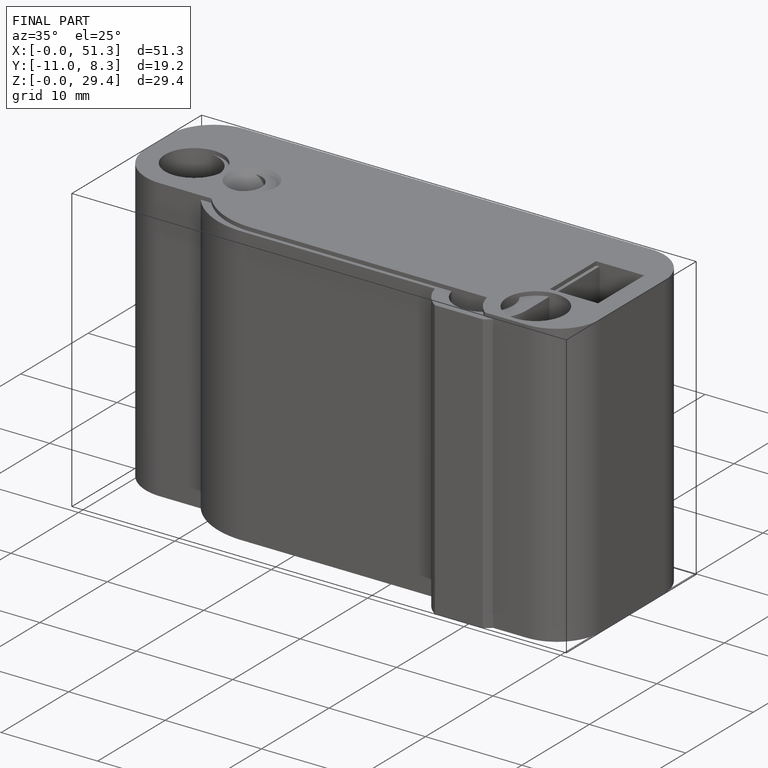
[diagram: finished part — iso view with bounding-box wireframe]
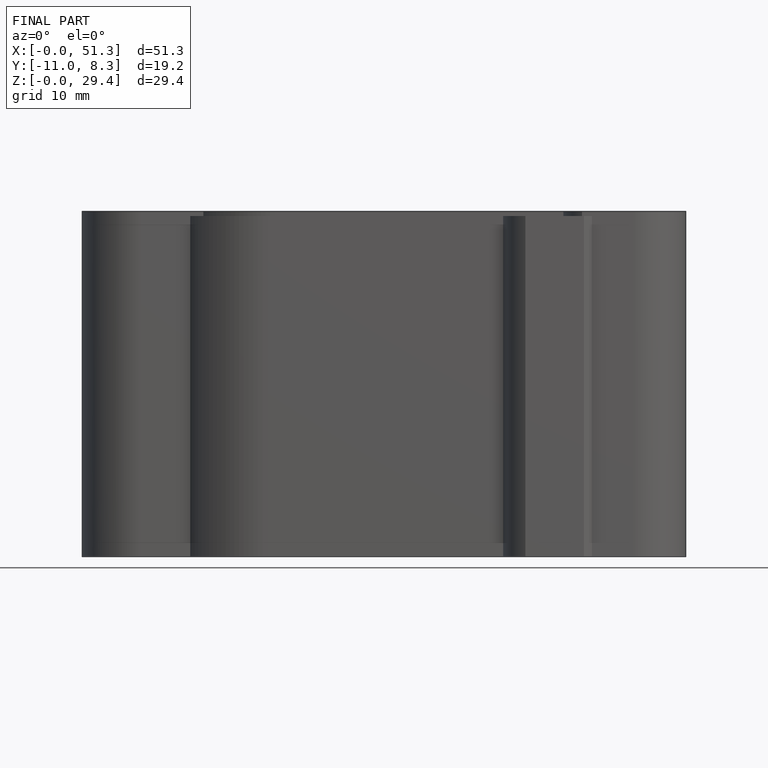
[diagram: finished part — front view with bounding-box wireframe]
